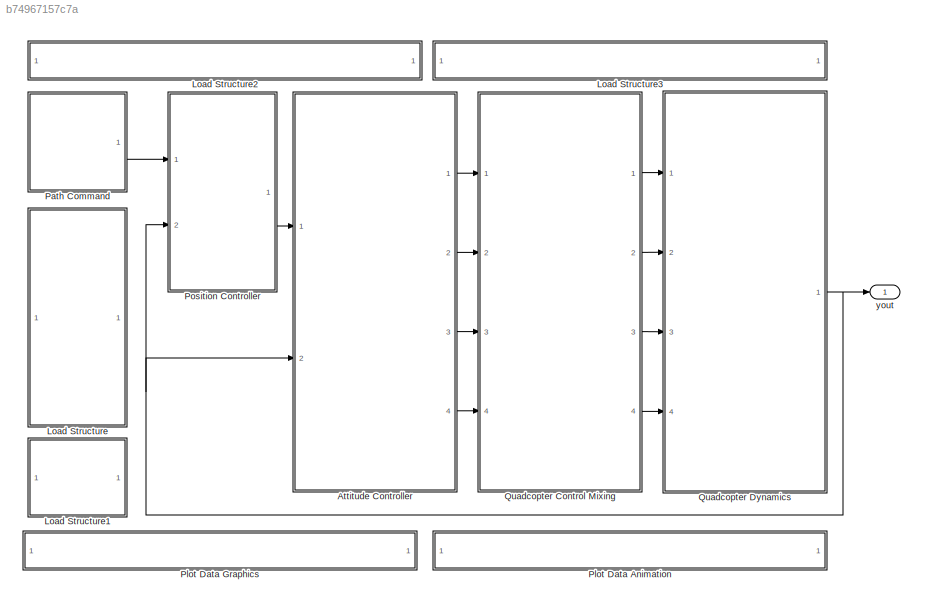
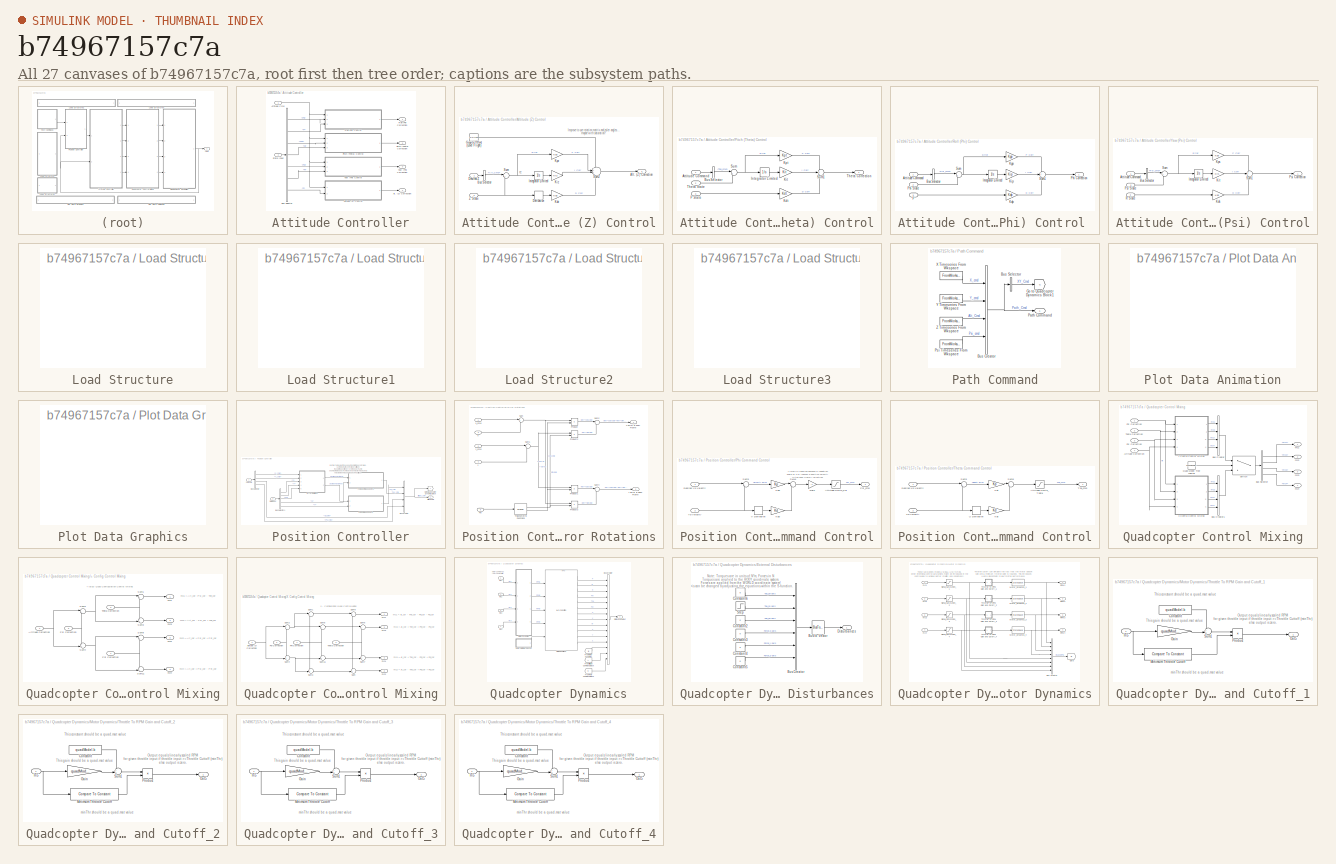
[diagram: thumbnail index - all 27 canvases of the model, root first then tree order]
MODEL slx_b74967157c7a
KIND model
WORKSPACE source: MAT-file member
WORKSPACE MCOS: class17 (value not decoded)
BLOCK [SubSystem] Attitude Controller
  FunctionWithSeparateData = off
  MaskHideContents = off
  MaskIconFrame = on
  MaskIconOpaque = off
  MaskIconRotate = none
  MaskIconUnits = autoscale
  MaskPortRotate = default
  MinAlgLoopOccurrences = off
  Opaque = off
  Ports = [2, 4]
  PropExecContextOutsideSubsystem = off
  RTWSystemCode = Auto
  RequestExecContextInheritance = off
BLOCK [Outport] Attitude Controller/Alt. (Z) Correction
  IconDisplay = Port number
  Port = 4
BLOCK [SubSystem] Attitude Controller/Altitude (Z) Control
  FunctionWithSeparateData = off
  MaskCallbackString = ||||||
  MaskDescription = Adjust PID controller gains through this mask interface, or "look under mask" for more detailed adjustments.\n\nNote: Gravity Offset will not appear on block face as a value until simulation is run if it is the result of a formula involving the quadcopter model parameters.
  MaskDisplay = fprintf(['Gravity Offset = ' num2str(GOffset) '\n' ...\n    'Kp = ' num2str(Kpz) '\n' ...\n    'Ki = ' num2str(Kiz) '\n' ...\n    'Kd = ' num2str(Kdz) '\n' ...\n    'Integral Saturation: ' LimitOutput]);   \nif strcmp(LimitOutput,'on')\n    fprintf([' \n' ' \n' ' \n' ' \n' ' \n' '\n' ...\n        'Limits: ' num2str(USat) ' to ' num2str(LSat)]);\nend
  MaskEnableString = on,on,on,on,on,on,on
  MaskHideContents = off
  MaskIconFrame = on
  MaskIconOpaque = off
  MaskIconRotate = none
  MaskIconUnits = autoscale
  MaskPortRotate = default
  MaskPromptString = Kp|Ki|Kd|Integral Saturation?|Upper saturation limit:|Lower saturation limit:|Gravity Feedforward
  MaskStyleString = promote(Kpz/Gain),promote(Kiz/Gain),promote(Kdz/Gain),promote(Integrator\nLimited/LimitOutput),promote(Integrator\nLimited/UpperSaturationLimit),promote(Integrator\nLimited/LowerSaturationLimit),promote(Gravity Offset (Level Flight)/Value)
  MaskToolTipString = on,on,on,on,on,on,on
  MaskTunableValueString = on,on,on,on,on,on,on
  MaskValueString = 2|1.1|3.3|on|1|-1|(sqrt((quadModel.mass*quadModel.g)/(4*quadModel.ct))-quadModel.b)/quadModel.cr
  MaskVariables = Kpz=@1;Kiz=@2;Kdz=@3;LimitOutput=&4;USat=@5;LSat=@6;GOffset=@7;
  MaskVisibilityString = on,on,on,on,on,on,on
  MinAlgLoopOccurrences = off
  Opaque = off
  Ports = [2, 1]
  PropExecContextOutsideSubsystem = off
  RTWSystemCode = Auto
  RequestExecContextInheritance = off
BLOCK [Outport] Attitude Controller/Altitude (Z) Control/Alt. (Z) Correction
  IconDisplay = Port number
BLOCK [BusSelector] Attitude Controller/Altitude (Z) Control/Bus Selector
  OutputSignals = Alt_Cmd
  Ports = [1, 1]
BLOCK [Derivative] Attitude Controller/Altitude (Z) Control/Derivative
BLOCK [Inport] Attitude Controller/Altitude (Z) Control/Desired Z
  IconDisplay = Port number
BLOCK [Constant] Attitude Controller/Altitude (Z) Control/Gravity Offset (Level Flight)
  Value = GOffset
BLOCK [Integrator] Attitude Controller/Altitude (Z) Control/Integrator Limited
  LimitOutput = on
  LowerSaturationLimit = LSat
  Ports = [1, 1]
  UpperSaturationLimit = USat
BLOCK [Gain] Attitude Controller/Altitude (Z) Control/Kdz
  Gain = Kdz
  OutDataTypeStr = Inherit: Inherit via internal rule
  ParamDataTypeStr = Inherit: Inherit via internal rule
  SaturateOnIntegerOverflow = off
BLOCK [Gain] Attitude Controller/Altitude (Z) Control/Kiz
  Gain = Kiz
  OutDataTypeStr = Inherit: Inherit via internal rule
  ParamDataTypeStr = Inherit: Inherit via internal rule
  SaturateOnIntegerOverflow = off
BLOCK [Gain] Attitude Controller/Altitude (Z) Control/Kpz
  Gain = Kpz
  OutDataTypeStr = Inherit: Inherit via internal rule
  ParamDataTypeStr = Inherit: Inherit via internal rule
  SaturateOnIntegerOverflow = off
BLOCK [Sum] Attitude Controller/Altitude (Z) Control/Sum
  IconShape = round
  InputSameDT = off
  Inputs = |+-
  OutDataTypeStr = Inherit: Inherit via internal rule
  Ports = [2, 1]
  SaturateOnIntegerOverflow = off
BLOCK [Sum] Attitude Controller/Altitude (Z) Control/Sum2
  IconShape = round
  InputSameDT = off
  Inputs = +++-
  OutDataTypeStr = Inherit: Inherit via internal rule
  Ports = [4, 1]
  SaturateOnIntegerOverflow = off
BLOCK [Inport] Attitude Controller/Altitude (Z) Control/Z State
  IconDisplay = Port number
  Port = 2
BLOCK [Inport] Attitude Controller/Attitude Cmd
  IconDisplay = Port number
BLOCK [BusSelector] Attitude Controller/Bus Selector
  OutputSignals = Phi,P,The,Q,Psi,R,Z
  Ports = [1, 7]
BLOCK [SubSystem] Attitude Controller/Pitch (Theta) Control
  FunctionWithSeparateData = off
  MaskCallbackString = |||||
  MaskDescription = Adjust PID controller gains through this mask interface, or "look under mask" for more detailed adjustments.
  MaskDisplay = fprintf(['Kp = ' num2str(Kpt) '\n' ...\n    'Ki = ' num2str(Kit) '\n' ...\n    'Kd = ' num2str(Kdt) '\n' ...\n    'Integral Saturation: ' LimitOutput]);   \nif strcmp(LimitOutput,'on')\n    fprintf([' \n' ' \n' ' \n' ' \n' '\n' ...\n        'Limits: ' num2str(USat) ' to ' num2str(LSat)]);\nend
  MaskEnableString = on,on,on,on,on,on
  MaskHideContents = off
  MaskIconFrame = on
  MaskIconOpaque = off
  MaskIconRotate = none
  MaskIconUnits = autoscale
  MaskPortRotate = default
  MaskPromptString = Kp|Ki|Kd|Integral Saturation?|Upper saturation limit:|Lower saturation limit:
  MaskStyleString = promote(Kpt/Gain),promote(Kit/Gain),promote(Kdt/Gain),promote(Integrator\nLimited/LimitOutput),promote(Integrator\nLimited/UpperSaturationLimit),promote(Integrator\nLimited/LowerSaturationLimit)
  MaskToolTipString = on,on,on,on,on,on
  MaskTunableValueString = on,on,on,on,on,on
  MaskValueString = 2|1.1|1.2|on|1|-1
  MaskVariables = Kpt=@1;Kit=@2;Kdt=@3;LimitOutput=&4;USat=@5;LSat=@6;
  MaskVisibilityString = on,on,on,on,on,on
  MinAlgLoopOccurrences = off
  Opaque = off
  Ports = [3, 1]
  PropExecContextOutsideSubsystem = off
  RTWSystemCode = Auto
  RequestExecContextInheritance = off
BLOCK [Inport] Attitude Controller/Pitch (Theta) Control/Attitude Command
  IconDisplay = Port number
BLOCK [BusSelector] Attitude Controller/Pitch (Theta) Control/Bus Selector
  OutputSignals = The_cmd
  Ports = [1, 1]
BLOCK [Integrator] Attitude Controller/Pitch (Theta) Control/Integrator Limited
  LimitOutput = on
  LowerSaturationLimit = LSat
  Ports = [1, 1]
  UpperSaturationLimit = USat
BLOCK [Gain] Attitude Controller/Pitch (Theta) Control/Kdt
  Gain = Kdt
  OutDataTypeStr = Inherit: Inherit via internal rule
  ParamDataTypeStr = Inherit: Inherit via internal rule
  SaturateOnIntegerOverflow = off
BLOCK [Gain] Attitude Controller/Pitch (Theta) Control/Kit
  Gain = Kit
  OutDataTypeStr = Inherit: Inherit via internal rule
  ParamDataTypeStr = Inherit: Inherit via internal rule
  SaturateOnIntegerOverflow = off
BLOCK [Gain] Attitude Controller/Pitch (Theta) Control/Kpt
  Gain = Kpt
  OutDataTypeStr = Inherit: Inherit via internal rule
  ParamDataTypeStr = Inherit: Inherit via internal rule
  SaturateOnIntegerOverflow = off
BLOCK [Inport] Attitude Controller/Pitch (Theta) Control/P State
  IconDisplay = Port number
  Port = 3
BLOCK [Sum] Attitude Controller/Pitch (Theta) Control/Sum
  IconShape = round
  InputSameDT = off
  Inputs = |+-
  OutDataTypeStr = Inherit: Inherit via internal rule
  Ports = [2, 1]
  SaturateOnIntegerOverflow = off
BLOCK [Sum] Attitude Controller/Pitch (Theta) Control/Sum1
  IconShape = round
  InputSameDT = off
  Inputs = ++-
  OutDataTypeStr = Inherit: Inherit via internal rule
  Ports = [3, 1]
  SaturateOnIntegerOverflow = off
BLOCK [Outport] Attitude Controller/Pitch (Theta) Control/Theta Correction
  IconDisplay = Port number
BLOCK [Inport] Attitude Controller/Pitch (Theta) Control/Theta State
  IconDisplay = Port number
  Port = 2
BLOCK [Outport] Attitude Controller/Pitch (Theta) Correction
  IconDisplay = Port number
  Port = 2
BLOCK [SubSystem] Attitude Controller/Roll (Phi) Control 
  FunctionWithSeparateData = off
  MaskCallbackString = |||||
  MaskDescription = Adjust PID controller gains through this mask interface, or "look under mask"\nfor more detailed adjustments.
  MaskDisplay = fprintf(['Kp = ' num2str(Kpp) '\n' ...\n    'Ki = ' num2str(Kip) '\n' ...\n    'Kd = ' num2str(Kdp) '\n'...\n    'Integral Saturation: ' LimitOutput]);   \nif strcmp(LimitOutput,'on')\n    fprintf([' \n' ' \n' ' \n' ' \n' '\n' ...\n        'Limits: ' num2str(USat) ' to ' num2str(LSat)]);\nend
  MaskEnableString = on,on,on,on,on,on
  MaskHideContents = off
  MaskIconFrame = on
  MaskIconOpaque = off
  MaskIconRotate = none
  MaskIconUnits = autoscale
  MaskPortRotate = default
  MaskPromptString = Kp|Ki|Kd|Integral Saturation:|Upper saturation limit:|Lower saturation limit:
  MaskStyleString = promote(Kpp/Gain),promote(Kip/Gain),promote(Kdp/Gain),promote(Integrator\nLimited/LimitOutput),promote(Integrator\nLimited/UpperSaturationLimit),promote(Integrator\nLimited/LowerSaturationLimit)
  MaskToolTipString = on,on,on,on,on,on
  MaskTunableValueString = on,on,on,on,on,on
  MaskValueString = 2.0|1.1|1.2|on|1|-1
  MaskVariables = Kpp=@1;Kip=@2;Kdp=@3;LimitOutput=&4;USat=@5;LSat=@6;
  MaskVisibilityString = on,on,on,on,on,on
  MinAlgLoopOccurrences = off
  Opaque = off
  Ports = [3, 1]
  PropExecContextOutsideSubsystem = off
  RTWSystemCode = Auto
  RequestExecContextInheritance = off
BLOCK [Inport] Attitude Controller/Roll (Phi) Control /Attitude Command 
  IconDisplay = Port number
BLOCK [BusSelector] Attitude Controller/Roll (Phi) Control /Bus Selector
  OutputSignals = Phi_cmd
  Ports = [1, 1]
BLOCK [Integrator] Attitude Controller/Roll (Phi) Control /Integrator Limited
  LimitOutput = on
  LowerSaturationLimit = LSat
  Ports = [1, 1]
  UpperSaturationLimit = USat
BLOCK [Gain] Attitude Controller/Roll (Phi) Control /Kdp
  Gain = Kdp
  OutDataTypeStr = Inherit: Inherit via internal rule
  ParamDataTypeStr = Inherit: Inherit via internal rule
  SaturateOnIntegerOverflow = off
BLOCK [Gain] Attitude Controller/Roll (Phi) Control /Kip
  Gain = Kip
  OutDataTypeStr = Inherit: Inherit via internal rule
  ParamDataTypeStr = Inherit: Inherit via internal rule
  SaturateOnIntegerOverflow = off
BLOCK [Gain] Attitude Controller/Roll (Phi) Control /Kpp
  Gain = Kpp
  OutDataTypeStr = Inherit: Inherit via internal rule
  ParamDataTypeStr = Inherit: Inherit via internal rule
  SaturateOnIntegerOverflow = off
BLOCK [Inport] Attitude Controller/Roll (Phi) Control /P
  IconDisplay = Port number
  Port = 3
BLOCK [Outport] Attitude Controller/Roll (Phi) Control /Phi Correction
  IconDisplay = Port number
BLOCK [Inport] Attitude Controller/Roll (Phi) Control /Phi State
  IconDisplay = Port number
  Port = 2
BLOCK [Sum] Attitude Controller/Roll (Phi) Control /Sum
  IconShape = round
  InputSameDT = off
  Inputs = |+-
  OutDataTypeStr = Inherit: Inherit via internal rule
  Ports = [2, 1]
  SaturateOnIntegerOverflow = off
BLOCK [Sum] Attitude Controller/Roll (Phi) Control /Sum1
  IconShape = round
  InputSameDT = off
  Inputs = ++-
  OutDataTypeStr = Inherit: Inherit via internal rule
  Ports = [3, 1]
  SaturateOnIntegerOverflow = off
BLOCK [Outport] Attitude Controller/Roll (Phi) Correction
  IconDisplay = Port number
BLOCK [Inport] Attitude Controller/State Input
  IconDisplay = Port number
  Port = 2
BLOCK [SubSystem] Attitude Controller/Yaw (Psi) Control
  FunctionWithSeparateData = off
  MaskCallbackString = |||||
  MaskDescription = Adjust PID controller gains through this mask interface, or "look under mask" for more detailed adjustments.
  MaskDisplay = fprintf(['Kp = ' num2str(Kps) '\n' ...\n    'Ki = ' num2str(Kis) '\n' ...\n    'Kd = ' num2str(Kds) '\n' ...\n    'Integral Saturation: ' LimitOutput]);   \nif strcmp(LimitOutput,'on')\n    fprintf([' \n' ' \n' ' \n' ' \n' '\n' ...\n        'Limits: ' num2str(USat) ' to ' num2str(LSat)]);\nend
  MaskEnableString = on,on,on,on,on,on
  MaskHideContents = off
  MaskIconFrame = on
  MaskIconOpaque = off
  MaskIconRotate = none
  MaskIconUnits = autoscale
  MaskPortRotate = default
  MaskPromptString = Kp|Ki|Kd|Integral Saturation?|Upper saturation limit:|Lower saturation limit:
  MaskStyleString = promote(Kps/Gain),promote(Kit/Gain),promote(Kds/Gain),promote(Integrator\nLimited/LimitOutput),promote(Integrator\nLimited/UpperSaturationLimit),promote(Integrator\nLimited/LowerSaturationLimit)
  MaskToolTipString = on,on,on,on,on,on
  MaskTunableValueString = on,on,on,on,on,on
  MaskValueString = 4|0.5|3.5|on|1|-1
  MaskVariables = Kps=@1;Kis=@2;Kds=@3;LimitOutput=&4;USat=@5;LSat=@6;
  MaskVisibilityString = on,on,on,on,on,on
  MinAlgLoopOccurrences = off
  Opaque = off
  Ports = [3, 1]
  PropExecContextOutsideSubsystem = off
  RTWSystemCode = Auto
  RequestExecContextInheritance = off
BLOCK [Inport] Attitude Controller/Yaw (Psi) Control/Attitude Command
  IconDisplay = Port number
BLOCK [BusSelector] Attitude Controller/Yaw (Psi) Control/Bus Selector
  OutputSignals = Psi_cmd
  Ports = [1, 1]
BLOCK [Integrator] Attitude Controller/Yaw (Psi) Control/Integrator Limited
  LimitOutput = on
  LowerSaturationLimit = LSat
  Ports = [1, 1]
  UpperSaturationLimit = USat
BLOCK [Gain] Attitude Controller/Yaw (Psi) Control/Kds
  Gain = Kds
  OutDataTypeStr = Inherit: Inherit via internal rule
  ParamDataTypeStr = Inherit: Inherit via internal rule
  SaturateOnIntegerOverflow = off
BLOCK [Gain] Attitude Controller/Yaw (Psi) Control/Kit
  Gain = Kis
  OutDataTypeStr = Inherit: Inherit via internal rule
  ParamDataTypeStr = Inherit: Inherit via internal rule
  SaturateOnIntegerOverflow = off
BLOCK [Gain] Attitude Controller/Yaw (Psi) Control/Kps
  Gain = Kps
  OutDataTypeStr = Inherit: Inherit via internal rule
  ParamDataTypeStr = Inherit: Inherit via internal rule
  SaturateOnIntegerOverflow = off
BLOCK [Outport] Attitude Controller/Yaw (Psi) Control/Psi Correction
  IconDisplay = Port number
BLOCK [Inport] Attitude Controller/Yaw (Psi) Control/Psi State
  IconDisplay = Port number
  Port = 2
BLOCK [Inport] Attitude Controller/Yaw (Psi) Control/R State
  IconDisplay = Port number
  Port = 3
BLOCK [Sum] Attitude Controller/Yaw (Psi) Control/Sum
  IconShape = round
  InputSameDT = off
  Inputs = |+-
  OutDataTypeStr = Inherit: Inherit via internal rule
  Ports = [2, 1]
  SaturateOnIntegerOverflow = off
BLOCK [Sum] Attitude Controller/Yaw (Psi) Control/Sum1
  IconShape = round
  InputSameDT = off
  Inputs = ++-
  OutDataTypeStr = Inherit: Inherit via internal rule
  Ports = [3, 1]
  SaturateOnIntegerOverflow = off
BLOCK [Outport] Attitude Controller/Yaw (Psi) Correction
  IconDisplay = Port number
  Port = 3
BLOCK [SubSystem] Load Structure
  FunctionWithSeparateData = off
  MaskDisplay = fprintf('LOAD:\nTimeseries\nPath\nCommands,\nQuadcopter\nModel, Or\nInitial\nConditions');
  MaskHideContents = off
  MaskIconFrame = on
  MaskIconOpaque = on
  MaskIconRotate = none
  MaskIconUnits = autoscale
  MaskPortRotate = default
  MinAlgLoopOccurrences = off
  Opaque = off
  OpenFcn = uiopen('load')                                                        \nif ((exist('IC')==1) && (exist('quadModel')==1) && (exist('path')==1))\nset_param(bdroot, 'SimulationCommand', 'update')                      \nend
  Ports = []
  PropExecContextOutsideSubsystem = off
  RTWSystemCode = Auto
  RequestExecContextInheritance = off
  ShowPortLabels = FromPortBlockName
BLOCK [SubSystem] Load Structure1
  FunctionWithSeparateData = off
  MaskDisplay = fprintf('SAVE:\nSimulation\nResults');
  MaskHideContents = off
  MaskIconFrame = on
  MaskIconOpaque = on
  MaskIconRotate = none
  MaskIconUnits = autoscale
  MaskPortRotate = default
  MinAlgLoopOccurrences = off
  Opaque = off
  OpenFcn = if (exist('IC')==1 && exist('quadModel')==1 && exist('yout') && exist('tout'))\nsaveSimResults()                                                              \nelse                                                                          \nmsgbox('No Data To Save!')                                                    \nend
  Ports = []
  PropExecContextOutsideSubsystem = off
  RTWSystemCode = Auto
  RequestExecContextInheritance = off
  ShowPortLabels = FromPortBlockName
BLOCK [SubSystem] Load Structure2
  FunctionWithSeparateData = off
  MaskDisplay = fprintf('OPEN GUI: Build New \n Model');
  MaskHideContents = off
  MaskIconFrame = on
  MaskIconOpaque = on
  MaskIconRotate = none
  MaskIconUnits = autoscale
  MaskPortRotate = default
  MinAlgLoopOccurrences = off
  Opaque = off
  OpenFcn = if exist('GUI_Modeling') == 2,                                \nrun('GUI_Modeling')                                           \n                                                              \nelse                                                          \n                                                              \nmsgbox('The desired GUI must be first added to MATLABs path.')\n                      ...<+44ch>
  Ports = []
  PropExecContextOutsideSubsystem = off
  RTWSystemCode = Auto
  RequestExecContextInheritance = off
  ShowPortLabels = none
BLOCK [SubSystem] Load Structure3
  FunctionWithSeparateData = off
  MaskDisplay = fprintf('OPEN GUI: Create Initial \n Conditions');
  MaskHideContents = off
  MaskIconFrame = on
  MaskIconOpaque = on
  MaskIconRotate = none
  MaskIconUnits = autoscale
  MaskPortRotate = default
  MinAlgLoopOccurrences = off
  Opaque = off
  OpenFcn = if exist('GUI_IC') == 2,                                      \nrun('GUI_IC')                                                 \n                                                              \nelse                                                          \n                                                              \nmsgbox('The desired GUI must be first added to MATLABs path.')\n                      ...<+44ch>
  Ports = []
  PropExecContextOutsideSubsystem = off
  RTWSystemCode = Auto
  RequestExecContextInheritance = off
  ShowPortLabels = none
BLOCK [SubSystem] Path Command
  FunctionWithSeparateData = off
  MaskCallbackString = |
  MaskDescription = Selecting the Interpolate data checkbox causes position commands to be \nlinearly interpolated. For additional options related to the Timeseries \n"path" commands, look under the block and click on the Timeseries From \nWorkspace blocks.
  MaskEnableString = on,on
  MaskHideContents = off
  MaskIconFrame = on
  MaskIconOpaque = on
  MaskIconRotate = none
  MaskIconUnits = autoscale
  MaskPortRotate = default
  MaskPromptString = Interpolate X, Y, Z, and Psi command data?|Form output after final data value by:
  MaskStyleString = promote(X Timeseries From Wkspace/Interpolate|Y Timeseries From Wkspace/Interpolate|Z Timeseries From Wkspace/Interpolate|Psi Timeseries From Wkspace/Interpolate),promote(X Timeseries From Wkspace/OutputAfterFinalValue|Y Timeseries From Wkspace/OutputAfterFinalValue|Z Timeseries From Wkspace/OutputAfterFinalValue|Psi Timeseries From Wkspace/OutputAfterFinalValue)
  MaskToolTipString = on,on
  MaskTunableValueString = on,on
  MaskValueString = on|Holding final value
  MaskVariables = Interpolate=&1;OutputAfterFinalValue=&2;
  MaskVisibilityString = on,on
  MinAlgLoopOccurrences = off
  Opaque = off
  Ports = [0, 1]
  PropExecContextOutsideSubsystem = off
  RTWSystemCode = Auto
  RequestExecContextInheritance = off
BLOCK [BusCreator] Path Command/Bus Creator
  DisplayOption = bar
  Ports = [4, 1]
BLOCK [BusSelector] Path Command/Bus Selector
  OutputAsBus = on
  OutputSignals = X_cmd,Y_cmd
  Ports = [1, 1]
BLOCK [Goto] Path Command/Go to Quadcopter Dynamics Block1
  GotoTag = C
  TagVisibility = global
BLOCK [Outport] Path Command/Path Command 
  IconDisplay = Port number
BLOCK [FromWorkspace] Path Command/Psi Timeseries From Wkspace
  OutputAfterFinalValue = Holding final value
  SampleTime = 0
  VariableName = path.psi
  ZeroCross = on
BLOCK [FromWorkspace] Path Command/X Timeseries From Wkspace
  OutputAfterFinalValue = Holding final value
  SampleTime = 0
  VariableName = path.x
  ZeroCross = on
BLOCK [FromWorkspace] Path Command/Y Timeseries From Wkspace
  OutputAfterFinalValue = Holding final value
  SampleTime = 0
  VariableName = path.y
  ZeroCross = on
BLOCK [FromWorkspace] Path Command/Z Timeseries From Wkspace
  OutputAfterFinalValue = Holding final value
  SampleTime = 0
  VariableName = path.z
  ZeroCross = on
BLOCK [SubSystem] Plot Data Animation
  FunctionWithSeparateData = off
  MaskDisplay = fprintf('OPEN GUI: Flight Animation')
  MaskHideContents = off
  MaskIconFrame = on
  MaskIconOpaque = on
  MaskIconRotate = none
  MaskIconUnits = autoscale
  MaskPortRotate = default
  MinAlgLoopOccurrences = off
  Opaque = off
  OpenFcn = if exist('QuadAnim4') == 2,                                                                                                                 \n    if exist('yout')                                                                                                                        \n	run('QuadAnim4');                                                                                                    ...<+590ch>
  Ports = []
  PropExecContextOutsideSubsystem = off
  RTWSystemCode = Auto
  RequestExecContextInheritance = off
  ShowPortLabels = FromPortBlockName
BLOCK [SubSystem] Plot Data Graphics
  FunctionWithSeparateData = off
  MaskDisplay = fprintf('OPEN PLOT: State Data')
  MaskHideContents = off
  MaskIconFrame = on
  MaskIconOpaque = on
  MaskIconRotate = none
  MaskIconUnits = autoscale
  MaskPortRotate = default
  MinAlgLoopOccurrences = off
  Opaque = off
  OpenFcn = if exist('yout')                                            \nyout = evalin('base', 'yout');                              \ntout = evalin('base', 'tout');                              \nquadPlots(yout, tout)                                       \nelse                                                        \nmsgbox('Simulation must be run before data can be plotted.')\nend
  Ports = []
  PropExecContextOutsideSubsystem = off
  RTWSystemCode = Auto
  RequestExecContextInheritance = off
  ShowPortLabels = FromPortBlockName
BLOCK [SubSystem] Position Controller
  FunctionWithSeparateData = off
  MaskHideContents = off
  MaskIconFrame = on
  MaskIconOpaque = on
  MaskIconRotate = none
  MaskIconUnits = autoscale
  MaskPortRotate = default
  MinAlgLoopOccurrences = off
  Opaque = off
  Ports = [2, 1]
  PropExecContextOutsideSubsystem = off
  RTWSystemCode = Auto
  RequestExecContextInheritance = off
BLOCK [Outport] Position Controller/Attitude Cmd
  IconDisplay = Port number
BLOCK [BusCreator] Position Controller/Bus Creator
  DisplayOption = bar
  Ports = [4, 1]
BLOCK [BusSelector] Position Controller/Bus Selector
  OutputSignals = X_cmd,Y_cmd,Alt_Cmd,Psi_cmd
  Ports = [1, 4]
BLOCK [BusSelector] Position Controller/Bus Selector1
  OutputSignals = X,Y,Psi,U,V
  Ports = [1, 5]
BLOCK [SubSystem] Position Controller/Error Rotations
  FunctionWithSeparateData = off
  MaskHideContents = off
  MaskIconFrame = on
  MaskIconOpaque = off
  MaskIconRotate = none
  MaskIconUnits = autoscale
  MaskPortRotate = default
  MinAlgLoopOccurrences = off
  Opaque = off
  Ports = [5, 2]
  PropExecContextOutsideSubsystem = off
  RTWSystemCode = Auto
  RequestExecContextInheritance = off
BLOCK [Product] Position Controller/Error Rotations/Product
  InputSameDT = off
  OutDataTypeStr = Inherit: Inherit via internal rule
  Ports = [2, 1]
  RndMeth = Floor
  SaturateOnIntegerOverflow = off
BLOCK [Product] Position Controller/Error Rotations/Product1
  InputSameDT = off
  OutDataTypeStr = Inherit: Inherit via internal rule
  Ports = [2, 1]
  RndMeth = Floor
  SaturateOnIntegerOverflow = off
BLOCK [Product] Position Controller/Error Rotations/Product2
  InputSameDT = off
  OutDataTypeStr = Inherit: Inherit via internal rule
  Ports = [2, 1]
  RndMeth = Floor
  SaturateOnIntegerOverflow = off
BLOCK [Product] Position Controller/Error Rotations/Product3
  InputSameDT = off
  OutDataTypeStr = Inherit: Inherit via internal rule
  Ports = [2, 1]
  RndMeth = Floor
  SaturateOnIntegerOverflow = off
BLOCK [Inport] Position Controller/Error Rotations/Psi
  IconDisplay = Port number
  Port = 5
BLOCK [Sum] Position Controller/Error Rotations/Sum
  IconShape = round
  InputSameDT = off
  Inputs = |+-
  OutDataTypeStr = Inherit: Inherit via internal rule
  Ports = [2, 1]
  SaturateOnIntegerOverflow = off
BLOCK [Sum] Position Controller/Error Rotations/Sum1
  IconShape = round
  InputSameDT = off
  Inputs = |+-
  OutDataTypeStr = Inherit: Inherit via internal rule
  Ports = [2, 1]
  SaturateOnIntegerOverflow = off
BLOCK [Sum] Position Controller/Error Rotations/Sum2
  IconShape = round
  InputSameDT = off
  Inputs = |++
  OutDataTypeStr = Inherit: Inherit via internal rule
  Ports = [2, 1]
  SaturateOnIntegerOverflow = off
BLOCK [Sum] Position Controller/Error Rotations/Sum4
  IconShape = round
  InputSameDT = off
  Inputs = |+-
  OutDataTypeStr = Inherit: Inherit via internal rule
  Ports = [2, 1]
  SaturateOnIntegerOverflow = off
BLOCK [Trigonometry] Position Controller/Error Rotations/Trigonometric Functions
  Operator = sincos
  Ports = [1, 2]
BLOCK [Inport] Position Controller/Error Rotations/X
  IconDisplay = Port number
  Port = 3
BLOCK [Outport] Position Controller/Error Rotations/X Error in body Frame
  IconDisplay = Port number
BLOCK [Inport] Position Controller/Error Rotations/X_cmd
  IconDisplay = Port number
BLOCK [Inport] Position Controller/Error Rotations/Y
  IconDisplay = Port number
  Port = 4
BLOCK [Outport] Position Controller/Error Rotations/Y Error in Body Frame
  IconDisplay = Port number
  Port = 2
BLOCK [Inport] Position Controller/Error Rotations/Y_cmd
  IconDisplay = Port number
  Port = 2
BLOCK [Goto] Position Controller/Goto Quadcopter Dynamics Block
  GotoTag = A
  TagVisibility = global
BLOCK [Inport] Position Controller/Path Cmd
  IconDisplay = Port number
BLOCK [SubSystem] Position Controller/Phi Command Control
  FunctionWithSeparateData = off
  MaskCallbackString = ||
  MaskDisplay = fprintf(['Kp = ' num2str(Kp) '\n' ...\n    'Kd = ' num2str(Kd) '\n' ...\n    'Attitude Limit (+/-): ' num2str(ASat*180/pi) '°']);
  MaskEnableString = on,on,on
  MaskHideContents = off
  MaskIconFrame = on
  MaskIconOpaque = off
  MaskIconRotate = none
  MaskIconUnits = autoscale
  MaskPortRotate = default
  MaskPromptString = Proportional Gain|Derivative Gain|Attitude Limit (+/- radians):
  MaskStyleString = promote(Kpp/Gain),promote(Kdp/Gain),promote(Attitude Limits_Phi/UpperLimit)
  MaskToolTipString = on,on,on
  MaskTunableValueString = on,on,on
  MaskValueString = 0.32|0.1|12*pi/180
  MaskVariables = Kp=@1;Kd=@2;ASat=@3;
  MaskVisibilityString = on,on,on
  MinAlgLoopOccurrences = off
  Opaque = off
  Ports = [2, 1]
  PropExecContextOutsideSubsystem = off
  RTWSystemCode = Auto
  RequestExecContextInheritance = off
BLOCK [Saturate] Position Controller/Phi Command Control/Attitude Limits_Phi
  InputPortMap = u0
  LowerLimit = -ASat
  Ports = [1, 1]
  UpperLimit = ASat
BLOCK [Inport] Position Controller/Phi Command Control/Desired Yb Velocity
  IconDisplay = Port number
BLOCK [Gain] Position Controller/Phi Command Control/Gain
  Gain = -1
  OutDataTypeStr = Inherit: Inherit via internal rule
  ParamDataTypeStr = Inherit: Inherit via internal rule
  SaturateOnIntegerOverflow = off
BLOCK [Gain] Position Controller/Phi Command Control/Kdp
  Gain = Kd
  OutDataTypeStr = Inherit: Inherit via internal rule
  ParamDataTypeStr = Inherit: Inherit via internal rule
  SaturateOnIntegerOverflow = off
BLOCK [Gain] Position Controller/Phi Command Control/Kpp
  Gain = Kp
  OutDataTypeStr = Inherit: Inherit via internal rule
  ParamDataTypeStr = Inherit: Inherit via internal rule
  SaturateOnIntegerOverflow = off
BLOCK [Outport] Position Controller/Phi Command Control/Phi_cmd
  IconDisplay = Port number
BLOCK [Sum] Position Controller/Phi Command Control/Sum3
  IconShape = round
  InputSameDT = off
  Inputs = |+-
  OutDataTypeStr = Inherit: Inherit via internal rule
  Ports = [2, 1]
  SaturateOnIntegerOverflow = off
BLOCK [Sum] Position Controller/Phi Command Control/Sum6
  IconShape = round
  InputSameDT = off
  Inputs = |+-
  OutDataTypeStr = Inherit: Inherit via internal rule
  Ports = [2, 1]
  SaturateOnIntegerOverflow = off
BLOCK [Derivative] Position Controller/Phi Command Control/V Derivative
BLOCK [Inport] Position Controller/Phi Command Control/Yb Velocity
  IconDisplay = Port number
  Port = 2
BLOCK [Inport] Position Controller/State Input
  IconDisplay = Port number
  Port = 2
BLOCK [SubSystem] Position Controller/Theta Command Control
  FunctionWithSeparateData = off
  MaskCallbackString = ||
  MaskDisplay = fprintf(['Kp = ' num2str(Kp) '\n' ...\n    'Kd = ' num2str(Kd) '\n' ...\n    'Attitude Limit (+/-): ' num2str(ASat*180/pi) '°']);
  MaskEnableString = on,on,on
  MaskHideContents = off
  MaskIconFrame = on
  MaskIconOpaque = off
  MaskIconRotate = none
  MaskIconUnits = autoscale
  MaskPortRotate = default
  MaskPromptString = Proportional Gain:|Derivative Gain|Attitude Limit (+/- radians):
  MaskStyleString = promote(Kpt/Gain),promote(Kdt/Gain),promote(Attitude Limits_Theta/UpperLimit)
  MaskToolTipString = on,on,on
  MaskTunableValueString = on,on,on
  MaskValueString = 0.32|0.10|12*pi/180
  MaskVariables = Kp=@1;Kd=@2;ASat=@3;
  MaskVisibilityString = on,on,on
  MinAlgLoopOccurrences = off
  Opaque = off
  Ports = [2, 1]
  PropExecContextOutsideSubsystem = off
  RTWSystemCode = Auto
  RequestExecContextInheritance = off
BLOCK [Saturate] Position Controller/Theta Command Control/Attitude Limits_Theta
  InputPortMap = u0
  LowerLimit = -ASat
  Ports = [1, 1]
  UpperLimit = ASat
BLOCK [Inport] Position Controller/Theta Command Control/Desired Xb Velocity
  IconDisplay = Port number
BLOCK [Gain] Position Controller/Theta Command Control/Kdt
  Gain = Kd
  OutDataTypeStr = Inherit: Inherit via internal rule
  ParamDataTypeStr = Inherit: Inherit via internal rule
  SaturateOnIntegerOverflow = off
BLOCK [Gain] Position Controller/Theta Command Control/Kpt
  Gain = Kp
  OutDataTypeStr = Inherit: Inherit via internal rule
  ParamDataTypeStr = Inherit: Inherit via internal rule
  SaturateOnIntegerOverflow = off
BLOCK [Sum] Position Controller/Theta Command Control/Sum3
  IconShape = round
  InputSameDT = off
  Inputs = |+-
  OutDataTypeStr = Inherit: Inherit via internal rule
  Ports = [2, 1]
  SaturateOnIntegerOverflow = off
BLOCK [Sum] Position Controller/Theta Command Control/Sum6
  IconShape = round
  InputSameDT = off
  Inputs = |+-
  OutDataTypeStr = Inherit: Inherit via internal rule
  Ports = [2, 1]
  SaturateOnIntegerOverflow = off
BLOCK [Outport] Position Controller/Theta Command Control/The_cmd
  IconDisplay = Port number
BLOCK [Derivative] Position Controller/Theta Command Control/U Derivative
BLOCK [Inport] Position Controller/Theta Command Control/Xb Velocity
  IconDisplay = Port number
  Port = 2
BLOCK [SubSystem] Quadcopter Control Mixing
  FunctionWithSeparateData = off
  MaskDisplay = modelLoaded = evalin('base','exist(''quadModel'',''var'')');\nif (modelLoaded==1)\n    if (evalin('base','quadModel.plusConfig'))\n    fprintf([' \n' ' \n'  'Configuration "+"']);\n    else if (~evalin('base','quadModel.plusConfig'))\n        fprintf([' \n' ' \n' 'Configuration "X"']);\n        end\n    end\nelse\n    fprintf([' \n' ' \n'  'Model Not Loaded']);\nend
  MaskHideContents = off
  MaskIconFrame = on
  MaskIconOpaque = off
  MaskIconRotate = none
  MaskIconUnits = autoscale
  MaskPortRotate = default
  MinAlgLoopOccurrences = off
  Opaque = off
  Ports = [4, 4]
  PropExecContextOutsideSubsystem = off
  RTWSystemCode = Auto
  RequestExecContextInheritance = off
BLOCK [SubSystem] Quadcopter Control Mixing/+ Config Control Mixing
  FunctionWithSeparateData = off
  MaskHideContents = off
  MaskIconFrame = on
  MaskIconOpaque = on
  MaskIconRotate = none
  MaskIconUnits = autoscale
  MaskPortRotate = default
  MinAlgLoopOccurrences = off
  Opaque = off
  Ports = [4, 4]
  PropExecContextOutsideSubsystem = off
  RTWSystemCode = Auto
  RequestExecContextInheritance = off
BLOCK [Inport] Quadcopter Control Mixing/+ Config Control Mixing/Altitude Correction
  IconDisplay = Port number
  Port = 4
BLOCK [Inport] Quadcopter Control Mixing/+ Config Control Mixing/Phi Correction
  IconDisplay = Port number
BLOCK [Inport] Quadcopter Control Mixing/+ Config Control Mixing/Psi Correction
  IconDisplay = Port number
  Port = 3
BLOCK [Sum] Quadcopter Control Mixing/+ Config Control Mixing/Sum1
  IconShape = round
  InputSameDT = off
  Inputs = |+-
  OutDataTypeStr = Inherit: Inherit via internal rule
  Ports = [2, 1]
  SaturateOnIntegerOverflow = off
BLOCK [Sum] Quadcopter Control Mixing/+ Config Control Mixing/Sum11
  IconShape = round
  InputSameDT = off
  Inputs = -+|
  OutDataTypeStr = Inherit: Inherit via internal rule
  Ports = [2, 1]
  SaturateOnIntegerOverflow = off
BLOCK [Sum] Quadcopter Control Mixing/+ Config Control Mixing/Sum2
  IconShape = round
  InputSameDT = off
  Inputs = |+-
  OutDataTypeStr = Inherit: Inherit via internal rule
  Ports = [2, 1]
  SaturateOnIntegerOverflow = off
BLOCK [Sum] Quadcopter Control Mixing/+ Config Control Mixing/Sum3
  IconShape = round
  InputSameDT = off
  Inputs = ++|
  OutDataTypeStr = Inherit: Inherit via internal rule
  Ports = [2, 1]
  SaturateOnIntegerOverflow = off
BLOCK [Sum] Quadcopter Control Mixing/+ Config Control Mixing/Sum4
  IconShape = round
  InputSameDT = off
  Inputs = ++|
  OutDataTypeStr = Inherit: Inherit via internal rule
  Ports = [2, 1]
  SaturateOnIntegerOverflow = off
BLOCK [Sum] Quadcopter Control Mixing/+ Config Control Mixing/Sum8
  IconShape = round
  InputSameDT = off
  Inputs = |++
  OutDataTypeStr = Inherit: Inherit via internal rule
  Ports = [2, 1]
  SaturateOnIntegerOverflow = off
BLOCK [Inport] Quadcopter Control Mixing/+ Config Control Mixing/Theta Correction
  IconDisplay = Port number
  Port = 2
BLOCK [Outport] Quadcopter Control Mixing/+ Config Control Mixing/mc1
  IconDisplay = Port number
BLOCK [Outport] Quadcopter Control Mixing/+ Config Control Mixing/mc2
  IconDisplay = Port number
  Port = 2
BLOCK [Outport] Quadcopter Control Mixing/+ Config Control Mixing/mc3
  IconDisplay = Port number
  Port = 3
BLOCK [Outport] Quadcopter Control Mixing/+ Config Control Mixing/mc4
  IconDisplay = Port number
  Port = 4
BLOCK [Inport] Quadcopter Control Mixing/Altitude Correction
  IconDisplay = Port number
  Port = 4
BLOCK [BusCreator] Quadcopter Control Mixing/Bus Creator
  DisplayOption = bar
  Ports = [4, 1]
BLOCK [BusCreator] Quadcopter Control Mixing/Bus Creator1
  DisplayOption = bar
  Ports = [4, 1]
BLOCK [BusSelector] Quadcopter Control Mixing/Bus Selector
  OutputSignals = mc1,mc2,mc3,mc4
  Ports = [1, 4]
BLOCK [Inport] Quadcopter Control Mixing/Phi Correction
  IconDisplay = Port number
BLOCK [Inport] Quadcopter Control Mixing/Psi Correction
  IconDisplay = Port number
  Port = 3
BLOCK [Constant] Quadcopter Control Mixing/Quad Model Type Logical
  Value = quadModel.plusConfig
BLOCK [Switch] Quadcopter Control Mixing/Switch
  Criteria = u2 ~= 0
  InputSameDT = off
  SaturateOnIntegerOverflow = off
BLOCK [Inport] Quadcopter Control Mixing/Theta Correction
  IconDisplay = Port number
  Port = 2
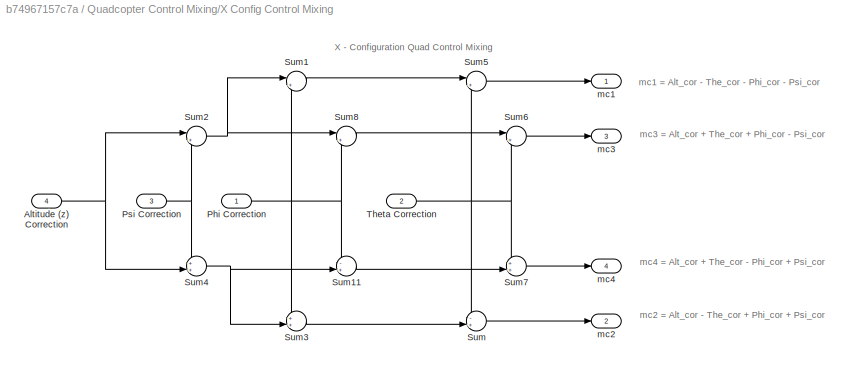
BLOCK [SubSystem] Quadcopter Control Mixing/X Config Control Mixing
  FunctionWithSeparateData = off
  MaskHideContents = off
  MaskIconFrame = on
  MaskIconOpaque = on
  MaskIconRotate = none
  MaskIconUnits = autoscale
  MaskPortRotate = default
  MinAlgLoopOccurrences = off
  Opaque = off
  Ports = [4, 4]
  PropExecContextOutsideSubsystem = off
  RTWSystemCode = Auto
  RequestExecContextInheritance = off
BLOCK [Inport] Quadcopter Control Mixing/X Config Control Mixing/Altitude (z) Correction
  IconDisplay = Port number
  Port = 4
BLOCK [Inport] Quadcopter Control Mixing/X Config Control Mixing/Phi Correction
  IconDisplay = Port number
BLOCK [Inport] Quadcopter Control Mixing/X Config Control Mixing/Psi Correction
  IconDisplay = Port number
  Port = 3
BLOCK [Sum] Quadcopter Control Mixing/X Config Control Mixing/Sum
  IconShape = round
  InputSameDT = off
  Inputs = -+|
  OutDataTypeStr = Inherit: Inherit via internal rule
  Ports = [2, 1]
  SaturateOnIntegerOverflow = off
BLOCK [Sum] Quadcopter Control Mixing/X Config Control Mixing/Sum1
  IconShape = round
  InputSameDT = off
  Inputs = |+-
  OutDataTypeStr = Inherit: Inherit via internal rule
  Ports = [2, 1]
  SaturateOnIntegerOverflow = off
BLOCK [Sum] Quadcopter Control Mixing/X Config Control Mixing/Sum11
  IconShape = round
  InputSameDT = off
  Inputs = -+|
  OutDataTypeStr = Inherit: Inherit via internal rule
  Ports = [2, 1]
  SaturateOnIntegerOverflow = off
BLOCK [Sum] Quadcopter Control Mixing/X Config Control Mixing/Sum2
  IconShape = round
  InputSameDT = off
  Inputs = |+-
  OutDataTypeStr = Inherit: Inherit via internal rule
  Ports = [2, 1]
  SaturateOnIntegerOverflow = off
BLOCK [Sum] Quadcopter Control Mixing/X Config Control Mixing/Sum3
  IconShape = round
  InputSameDT = off
  Inputs = ++|
  OutDataTypeStr = Inherit: Inherit via internal rule
  Ports = [2, 1]
  SaturateOnIntegerOverflow = off
BLOCK [Sum] Quadcopter Control Mixing/X Config Control Mixing/Sum4
  IconShape = round
  InputSameDT = off
  Inputs = ++|
  OutDataTypeStr = Inherit: Inherit via internal rule
  Ports = [2, 1]
  SaturateOnIntegerOverflow = off
BLOCK [Sum] Quadcopter Control Mixing/X Config Control Mixing/Sum5
  IconShape = round
  InputSameDT = off
  Inputs = |+-
  OutDataTypeStr = Inherit: Inherit via internal rule
  Ports = [2, 1]
  SaturateOnIntegerOverflow = off
BLOCK [Sum] Quadcopter Control Mixing/X Config Control Mixing/Sum6
  IconShape = round
  InputSameDT = off
  Inputs = |++
  OutDataTypeStr = Inherit: Inherit via internal rule
  Ports = [2, 1]
  SaturateOnIntegerOverflow = off
BLOCK [Sum] Quadcopter Control Mixing/X Config Control Mixing/Sum7
  IconShape = round
  InputSameDT = off
  Inputs = ++|
  OutDataTypeStr = Inherit: Inherit via internal rule
  Ports = [2, 1]
  SaturateOnIntegerOverflow = off
BLOCK [Sum] Quadcopter Control Mixing/X Config Control Mixing/Sum8
  IconShape = round
  InputSameDT = off
  Inputs = |++
  OutDataTypeStr = Inherit: Inherit via internal rule
  Ports = [2, 1]
  SaturateOnIntegerOverflow = off
BLOCK [Inport] Quadcopter Control Mixing/X Config Control Mixing/Theta Correction
  IconDisplay = Port number
  Port = 2
BLOCK [Outport] Quadcopter Control Mixing/X Config Control Mixing/mc1
  IconDisplay = Port number
BLOCK [Outport] Quadcopter Control Mixing/X Config Control Mixing/mc2
  IconDisplay = Port number
  Port = 2
BLOCK [Outport] Quadcopter Control Mixing/X Config Control Mixing/mc3
  IconDisplay = Port number
  Port = 3
BLOCK [Outport] Quadcopter Control Mixing/X Config Control Mixing/mc4
  IconDisplay = Port number
  Port = 4
BLOCK [Outport] Quadcopter Control Mixing/mc1
  IconDisplay = Port number
BLOCK [Outport] Quadcopter Control Mixing/mc2
  IconDisplay = Port number
  Port = 2
BLOCK [Outport] Quadcopter Control Mixing/mc3
  IconDisplay = Port number
  Port = 3
BLOCK [Outport] Quadcopter Control Mixing/mc4
  IconDisplay = Port number
  Port = 4
BLOCK [SubSystem] Quadcopter Dynamics
  FunctionWithSeparateData = off
  MaskHideContents = off
  MaskIconFrame = on
  MaskIconOpaque = off
  MaskIconRotate = none
  MaskIconUnits = autoscale
  MaskPortRotate = default
  MinAlgLoopOccurrences = off
  Opaque = off
  Ports = [4, 1]
  PropExecContextOutsideSubsystem = off
  RTWSystemCode = Auto
  RequestExecContextInheritance = off
BLOCK [BusCreator] Quadcopter Dynamics/Bus Creator
  DisplayOption = bar
  Inputs = 'P','Q','R','Phi','The','Psi','U','V','W','X','Y','Z','mc and RPM','Attitude_Cmd','XY_Cmd'
  Ports = [15, 1]
BLOCK [SubSystem] Quadcopter Dynamics/External Disturbances
  FunctionWithSeparateData = off
  MaskHideContents = off
  MinAlgLoopOccurrences = off
  Opaque = off
  Ports = [0, 1]
  PropExecContextOutsideSubsystem = off
  RTWSystemCode = Auto
  RequestExecContextInheritance = off
BLOCK [BusCreator] Quadcopter Dynamics/External Disturbances/Bus Creator
  DisplayOption = bar
  Inputs = 6
  Ports = [6, 1]
BLOCK [BusToVector] Quadcopter Dynamics/External Disturbances/Bus to Vector
BLOCK [Constant] Quadcopter Dynamics/External Disturbances/Constant2
  Value = 0
BLOCK [Constant] Quadcopter Dynamics/External Disturbances/Constant3
  Value = 0
BLOCK [Constant] Quadcopter Dynamics/External Disturbances/Constant4
  Value = 0
BLOCK [Constant] Quadcopter Dynamics/External Disturbances/Constant5
  Value = 0
BLOCK [Constant] Quadcopter Dynamics/External Disturbances/Constant6
  Value = 0
BLOCK [Outport] Quadcopter Dynamics/External Disturbances/Disturbances 
  IconDisplay = Port number
BLOCK [Step] Quadcopter Dynamics/External Disturbances/Step
  After = 0
  SampleTime = 0
BLOCK [From] Quadcopter Dynamics/From Attitude Command Block
  GotoTag = A
  TagVisibility = global
BLOCK [From] Quadcopter Dynamics/From Motor Dynamics
  GotoTag = B
  TagVisibility = global
BLOCK [From] Quadcopter Dynamics/From Path Command Block
  GotoTag = C
  TagVisibility = global
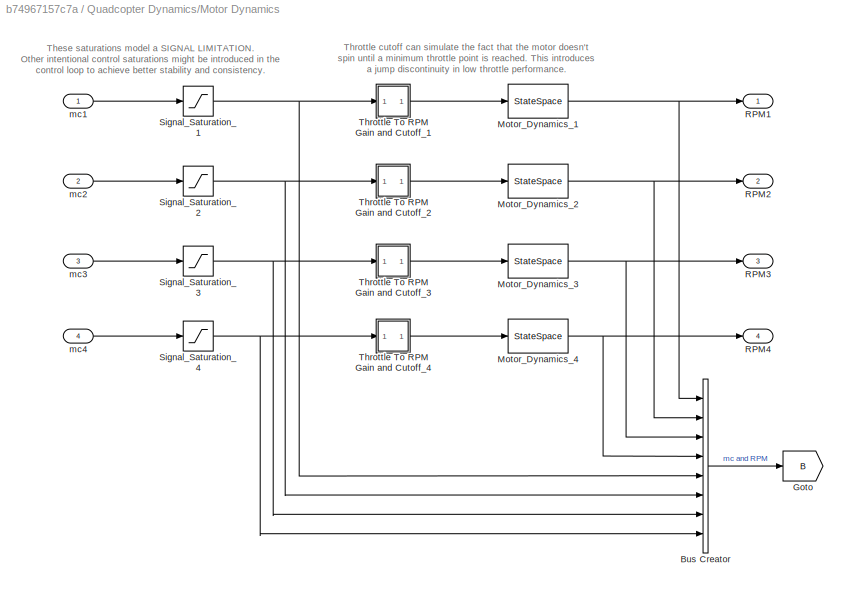
BLOCK [SubSystem] Quadcopter Dynamics/Motor Dynamics
  FunctionWithSeparateData = off
  MaskHideContents = off
  MinAlgLoopOccurrences = off
  Opaque = off
  Ports = [4, 4]
  PropExecContextOutsideSubsystem = off
  RTWSystemCode = Auto
  RequestExecContextInheritance = off
BLOCK [BusCreator] Quadcopter Dynamics/Motor Dynamics/Bus Creator
  DisplayOption = bar
  Inputs = 8
  Ports = [8, 1]
BLOCK [Goto] Quadcopter Dynamics/Motor Dynamics/Goto
  GotoTag = B
  TagVisibility = global
BLOCK [StateSpace] Quadcopter Dynamics/Motor Dynamics/Motor_Dynamics_1
  A = -1/quadModel.T
  C = 1/quadModel.T
  D = 0
  X0 = IC.w1*quadModel.T
BLOCK [StateSpace] Quadcopter Dynamics/Motor Dynamics/Motor_Dynamics_2
  A = -1/quadModel.T
  C = 1/quadModel.T
  D = 0
  X0 = IC.w2*quadModel.T
BLOCK [StateSpace] Quadcopter Dynamics/Motor Dynamics/Motor_Dynamics_3
  A = -1/quadModel.T
  C = 1/quadModel.T
  D = 0
  X0 = IC.w3*quadModel.T
BLOCK [StateSpace] Quadcopter Dynamics/Motor Dynamics/Motor_Dynamics_4
  A = -1/quadModel.T
  C = 1/quadModel.T
  D = 0
  X0 = IC.w4*quadModel.T
BLOCK [Outport] Quadcopter Dynamics/Motor Dynamics/RPM1
  IconDisplay = Port number
BLOCK [Outport] Quadcopter Dynamics/Motor Dynamics/RPM2
  IconDisplay = Port number
  Port = 2
BLOCK [Outport] Quadcopter Dynamics/Motor Dynamics/RPM3
  IconDisplay = Port number
  Port = 3
BLOCK [Outport] Quadcopter Dynamics/Motor Dynamics/RPM4
  IconDisplay = Port number
  Port = 4
BLOCK [Saturate] Quadcopter Dynamics/Motor Dynamics/Signal_Saturation_1
  InputPortMap = u0
  LowerLimit = 0
  Ports = [1, 1]
  UpperLimit = 100
BLOCK [Saturate] Quadcopter Dynamics/Motor Dynamics/Signal_Saturation_2
  InputPortMap = u0
  LowerLimit = 0
  Ports = [1, 1]
  UpperLimit = 100
BLOCK [Saturate] Quadcopter Dynamics/Motor Dynamics/Signal_Saturation_3
  InputPortMap = u0
  LowerLimit = 0
  Ports = [1, 1]
  UpperLimit = 100
BLOCK [Saturate] Quadcopter Dynamics/Motor Dynamics/Signal_Saturation_4
  InputPortMap = u0
  LowerLimit = 0
  Ports = [1, 1]
  UpperLimit = 100
BLOCK [SubSystem] Quadcopter Dynamics/Motor Dynamics/Throttle To RPM Gain and Cutoff_1
  FunctionWithSeparateData = off
  MaskHideContents = off
  MinAlgLoopOccurrences = off
  Opaque = off
  Ports = [1, 1]
  PropExecContextOutsideSubsystem = off
  RTWSystemCode = Auto
  RequestExecContextInheritance = off
  ShowPortLabels = none
BLOCK [Constant] Quadcopter Dynamics/Motor Dynamics/Throttle To RPM Gain and Cutoff_1/Constant
  Value = quadModel.b
BLOCK [Gain] Quadcopter Dynamics/Motor Dynamics/Throttle To RPM Gain and Cutoff_1/Gain
  Gain = quadModel.cr
  OutDataTypeStr = Inherit: Inherit via internal rule
  ParamDataTypeStr = Inherit: Inherit via internal rule
  SaturateOnIntegerOverflow = off
BLOCK [Inport] Quadcopter Dynamics/Motor Dynamics/Throttle To RPM Gain and Cutoff_1/In5
  IconDisplay = Port number
BLOCK [Reference] Quadcopter Dynamics/Motor Dynamics/Throttle To RPM Gain and Cutoff_1/Minimum Throttle Cutoff  REF=simulink/Logic and Bit
Operations/Compare
To Constant
  OutDataTypeStr = uint8
  Ports = [1, 1]
  SourceBlock = simulink/Logic and Bit\nOperations/Compare\nTo Constant
  SourceType = Compare To Constant
  ZeroCross = on
  const = quadModel.minThr
  relop = >=
BLOCK [Outport] Quadcopter Dynamics/Motor Dynamics/Throttle To RPM Gain and Cutoff_1/Out5
  IconDisplay = Port number
BLOCK [Product] Quadcopter Dynamics/Motor Dynamics/Throttle To RPM Gain and Cutoff_1/Product
  InputSameDT = off
  OutDataTypeStr = Inherit: Inherit via internal rule
  Ports = [2, 1]
  RndMeth = Floor
  SaturateOnIntegerOverflow = off
BLOCK [Sum] Quadcopter Dynamics/Motor Dynamics/Throttle To RPM Gain and Cutoff_1/Sum1
  IconShape = round
  InputSameDT = off
  Inputs = ++|
  OutDataTypeStr = Inherit: Inherit via internal rule
  Ports = [2, 1]
  SaturateOnIntegerOverflow = off
BLOCK [SubSystem] Quadcopter Dynamics/Motor Dynamics/Throttle To RPM Gain and Cutoff_2
  FunctionWithSeparateData = off
  MaskHideContents = off
  MinAlgLoopOccurrences = off
  Opaque = off
  Ports = [1, 1]
  PropExecContextOutsideSubsystem = off
  RTWSystemCode = Auto
  RequestExecContextInheritance = off
  ShowPortLabels = none
BLOCK [Constant] Quadcopter Dynamics/Motor Dynamics/Throttle To RPM Gain and Cutoff_2/Constant
  Value = quadModel.b
BLOCK [Gain] Quadcopter Dynamics/Motor Dynamics/Throttle To RPM Gain and Cutoff_2/Gain
  Gain = quadModel.cr
  OutDataTypeStr = Inherit: Inherit via internal rule
  ParamDataTypeStr = Inherit: Inherit via internal rule
  SaturateOnIntegerOverflow = off
BLOCK [Inport] Quadcopter Dynamics/Motor Dynamics/Throttle To RPM Gain and Cutoff_2/In5
  IconDisplay = Port number
BLOCK [Reference] Quadcopter Dynamics/Motor Dynamics/Throttle To RPM Gain and Cutoff_2/Minimum Throttle Cutoff  REF=simulink/Logic and Bit
Operations/Compare
To Constant
  OutDataTypeStr = uint8
  Ports = [1, 1]
  SourceBlock = simulink/Logic and Bit\nOperations/Compare\nTo Constant
  SourceType = Compare To Constant
  ZeroCross = on
  const = quadModel.minThr
  relop = >=
BLOCK [Outport] Quadcopter Dynamics/Motor Dynamics/Throttle To RPM Gain and Cutoff_2/Out5
  IconDisplay = Port number
BLOCK [Product] Quadcopter Dynamics/Motor Dynamics/Throttle To RPM Gain and Cutoff_2/Product
  InputSameDT = off
  OutDataTypeStr = Inherit: Inherit via internal rule
  Ports = [2, 1]
  RndMeth = Floor
  SaturateOnIntegerOverflow = off
BLOCK [Sum] Quadcopter Dynamics/Motor Dynamics/Throttle To RPM Gain and Cutoff_2/Sum1
  IconShape = round
  InputSameDT = off
  Inputs = ++|
  OutDataTypeStr = Inherit: Inherit via internal rule
  Ports = [2, 1]
  SaturateOnIntegerOverflow = off
BLOCK [SubSystem] Quadcopter Dynamics/Motor Dynamics/Throttle To RPM Gain and Cutoff_3
  FunctionWithSeparateData = off
  MaskHideContents = off
  MinAlgLoopOccurrences = off
  Opaque = off
  Ports = [1, 1]
  PropExecContextOutsideSubsystem = off
  RTWSystemCode = Auto
  RequestExecContextInheritance = off
  ShowPortLabels = none
BLOCK [Constant] Quadcopter Dynamics/Motor Dynamics/Throttle To RPM Gain and Cutoff_3/Constant
  Value = quadModel.b
BLOCK [Gain] Quadcopter Dynamics/Motor Dynamics/Throttle To RPM Gain and Cutoff_3/Gain
  Gain = quadModel.cr
  OutDataTypeStr = Inherit: Inherit via internal rule
  ParamDataTypeStr = Inherit: Inherit via internal rule
  SaturateOnIntegerOverflow = off
BLOCK [Inport] Quadcopter Dynamics/Motor Dynamics/Throttle To RPM Gain and Cutoff_3/In5
  IconDisplay = Port number
BLOCK [Reference] Quadcopter Dynamics/Motor Dynamics/Throttle To RPM Gain and Cutoff_3/Minimum Throttle Cutoff  REF=simulink/Logic and Bit
Operations/Compare
To Constant
  OutDataTypeStr = uint8
  Ports = [1, 1]
  SourceBlock = simulink/Logic and Bit\nOperations/Compare\nTo Constant
  SourceType = Compare To Constant
  ZeroCross = on
  const = quadModel.minThr
  relop = >=
BLOCK [Outport] Quadcopter Dynamics/Motor Dynamics/Throttle To RPM Gain and Cutoff_3/Out5
  IconDisplay = Port number
BLOCK [Product] Quadcopter Dynamics/Motor Dynamics/Throttle To RPM Gain and Cutoff_3/Product
  InputSameDT = off
  OutDataTypeStr = Inherit: Inherit via internal rule
  Ports = [2, 1]
  RndMeth = Floor
  SaturateOnIntegerOverflow = off
BLOCK [Sum] Quadcopter Dynamics/Motor Dynamics/Throttle To RPM Gain and Cutoff_3/Sum1
  IconShape = round
  InputSameDT = off
  Inputs = ++|
  OutDataTypeStr = Inherit: Inherit via internal rule
  Ports = [2, 1]
  SaturateOnIntegerOverflow = off
BLOCK [SubSystem] Quadcopter Dynamics/Motor Dynamics/Throttle To RPM Gain and Cutoff_4
  FunctionWithSeparateData = off
  MaskHideContents = off
  MinAlgLoopOccurrences = off
  Opaque = off
  Ports = [1, 1]
  PropExecContextOutsideSubsystem = off
  RTWSystemCode = Auto
  RequestExecContextInheritance = off
  ShowPortLabels = none
BLOCK [Constant] Quadcopter Dynamics/Motor Dynamics/Throttle To RPM Gain and Cutoff_4/Constant
  Value = quadModel.b
BLOCK [Gain] Quadcopter Dynamics/Motor Dynamics/Throttle To RPM Gain and Cutoff_4/Gain
  Gain = quadModel.cr
  OutDataTypeStr = Inherit: Inherit via internal rule
  ParamDataTypeStr = Inherit: Inherit via internal rule
  SaturateOnIntegerOverflow = off
BLOCK [Inport] Quadcopter Dynamics/Motor Dynamics/Throttle To RPM Gain and Cutoff_4/In5
  IconDisplay = Port number
BLOCK [Reference] Quadcopter Dynamics/Motor Dynamics/Throttle To RPM Gain and Cutoff_4/Minimum Throttle Cutoff  REF=simulink/Logic and Bit
Operations/Compare
To Constant
  OutDataTypeStr = uint8
  Ports = [1, 1]
  SourceBlock = simulink/Logic and Bit\nOperations/Compare\nTo Constant
  SourceType = Compare To Constant
  ZeroCross = on
  const = quadModel.minThr
  relop = >=
BLOCK [Outport] Quadcopter Dynamics/Motor Dynamics/Throttle To RPM Gain and Cutoff_4/Out5
  IconDisplay = Port number
BLOCK [Product] Quadcopter Dynamics/Motor Dynamics/Throttle To RPM Gain and Cutoff_4/Product
  InputSameDT = off
  OutDataTypeStr = Inherit: Inherit via internal rule
  Ports = [2, 1]
  RndMeth = Floor
  SaturateOnIntegerOverflow = off
BLOCK [Sum] Quadcopter Dynamics/Motor Dynamics/Throttle To RPM Gain and Cutoff_4/Sum1
  IconShape = round
  InputSameDT = off
  Inputs = ++|
  OutDataTypeStr = Inherit: Inherit via internal rule
  Ports = [2, 1]
  SaturateOnIntegerOverflow = off
BLOCK [Inport] Quadcopter Dynamics/Motor Dynamics/mc1
  IconDisplay = Port number
BLOCK [Inport] Quadcopter Dynamics/Motor Dynamics/mc2
  IconDisplay = Port number
  Port = 2
BLOCK [Inport] Quadcopter Dynamics/Motor Dynamics/mc3
  IconDisplay = Port number
  Port = 3
BLOCK [Inport] Quadcopter Dynamics/Motor Dynamics/mc4
  IconDisplay = Port number
  Port = 4
BLOCK [M-S-Function] Quadcopter Dynamics/State Equations
  FunctionName = quadcopterDynamicsSFunction
  MaskDisplay = port_label('input', 1, 'RPM1')\nport_label('input', 2, 'RPM2')\nport_label('input', 3, 'RPM3')\nport_label('input', 4, 'RPM4')\nport_label('input', 5, 'Disturbances')\nport_label('output', 1, 'P')\nport_label('output', 2, 'Q')\nport_label('output', 3, 'R')\nport_label('output', 4, 'Phi')\nport_label('output', 5, 'The')\nport_label('output', 6, 'Psi')\nport_label('output', 7, 'U')\nport_label('output', 8, 'V')...<+119ch>
  MaskIconFrame = on
  MaskIconOpaque = on
  MaskIconRotate = none
  MaskIconUnits = autoscale
  MaskPortRotate = default
  Parameters = quadModel, IC
  Ports = [5, 12]
BLOCK [Outport] Quadcopter Dynamics/States and Output
  IconDisplay = Port number
BLOCK [Inport] Quadcopter Dynamics/mc1
  IconDisplay = Port number
BLOCK [Inport] Quadcopter Dynamics/mc2
  IconDisplay = Port number
  Port = 2
BLOCK [Inport] Quadcopter Dynamics/mc3
  IconDisplay = Port number
  Port = 3
BLOCK [Inport] Quadcopter Dynamics/mc4
  IconDisplay = Port number
  Port = 4
BLOCK [Outport] yout
  IconDisplay = Port number
ANNOTATION Attitude Controller/Altitude (Z) Control: Improve to use rotation matrix and euler angles... maybe with saturation?
ANNOTATION Attitude Controller/Altitude (Z) Control: ez
ANNOTATION Position Controller: Inertial-frame velocity is used as the state to be controlled, (as this is what is controlled by attitude) thus we find position error in the body frame and map this to a body frame desired velocity. This desired velocity is then mapped to a desired attitude.
ANNOTATION Position Controller/Phi Command Control: -1 Gain is required because a "negative" angle of Phi induces a positive velocity in the body frame y direction!
ANNOTATION Quadcopter Control Mixing/+ Config Control Mixing: + (plus) Quad Configuration Control Mixing
ANNOTATION Quadcopter Control Mixing/+ Config Control Mixing: mc1 = Alt_cor -Psi_cor - The_cor
ANNOTATION Quadcopter Control Mixing/+ Config Control Mixing: mc2 = Alt_cor + Psi_cor + Phi_cor
ANNOTATION Quadcopter Control Mixing/+ Config Control Mixing: mc3 = Alt_cor - Psi_cor + The_cor
ANNOTATION Quadcopter Control Mixing/+ Config Control Mixing: mc4 = Alt_cor + Psi_cor - Phi_cor
ANNOTATION Quadcopter Control Mixing/X Config Control Mixing: X - Configuration Quad Control Mixing
ANNOTATION Quadcopter Control Mixing/X Config Control Mixing: mc1 = Alt_cor - The_cor - Phi_cor - Psi_cor
ANNOTATION Quadcopter Control Mixing/X Config Control Mixing: mc2 = Alt_cor - The_cor + Phi_cor + Psi_cor
ANNOTATION Quadcopter Control Mixing/X Config Control Mixing: mc3 = Alt_cor + The_cor + Phi_cor - Psi_cor
ANNOTATION Quadcopter Control Mixing/X Config Control Mixing: mc4 = Alt_cor + The_cor - Phi_cor + Psi_cor
ANNOTATION Quadcopter Dynamics: Motor Commands (Percent Thottle)
ANNOTATION Quadcopter Dynamics: RPM
ANNOTATION Quadcopter Dynamics/External Disturbances: Note: Torques are in units of N*m, Forces in N Torques are applied to the BODY coordinate system. Forces are applied from the WORLD coordinate system! This can be changed by adjusting the equations within the S-function.
ANNOTATION Quadcopter Dynamics/Motor Dynamics: These saturations model a SIGNAL LIMITATION. Other intentional control saturations might be introduced in the control loop to achieve better stability and consistency.
ANNOTATION Quadcopter Dynamics/Motor Dynamics: Throttle cutoff can simulate the fact that the motor doesn't spin until a minimum throttle point is reached. This introduces a jump discontinuity in low throttle performance.
ANNOTATION Quadcopter Dynamics/Motor Dynamics/Throttle To RPM Gain and Cutoff_1: Output equals linearly scaled RPM for given throttle input if throttle input >=Throttle Cuttoff (minThr) else output is zero.
ANNOTATION Quadcopter Dynamics/Motor Dynamics/Throttle To RPM Gain and Cutoff_1: This constant should be a quad.mat value
ANNOTATION Quadcopter Dynamics/Motor Dynamics/Throttle To RPM Gain and Cutoff_1: This gain should be a quad.mat value
ANNOTATION Quadcopter Dynamics/Motor Dynamics/Throttle To RPM Gain and Cutoff_1: minThr should be a quad.mat value
ANNOTATION Quadcopter Dynamics/Motor Dynamics/Throttle To RPM Gain and Cutoff_2: Output equals linearly scaled RPM for given throttle input if throttle input >=Throttle Cuttoff (minThr) else output is zero.
ANNOTATION Quadcopter Dynamics/Motor Dynamics/Throttle To RPM Gain and Cutoff_2: This constant should be a quad.mat value
ANNOTATION Quadcopter Dynamics/Motor Dynamics/Throttle To RPM Gain and Cutoff_2: This gain should be a quad.mat value
ANNOTATION Quadcopter Dynamics/Motor Dynamics/Throttle To RPM Gain and Cutoff_2: minThr should be a quad.mat value
ANNOTATION Quadcopter Dynamics/Motor Dynamics/Throttle To RPM Gain and Cutoff_3: Output equals linearly scaled RPM for given throttle input if throttle input >=Throttle Cuttoff (minThr) else output is zero.
ANNOTATION Quadcopter Dynamics/Motor Dynamics/Throttle To RPM Gain and Cutoff_3: This constant should be a quad.mat value
ANNOTATION Quadcopter Dynamics/Motor Dynamics/Throttle To RPM Gain and Cutoff_3: This gain should be a quad.mat value
ANNOTATION Quadcopter Dynamics/Motor Dynamics/Throttle To RPM Gain and Cutoff_3: minThr should be a quad.mat value
ANNOTATION Quadcopter Dynamics/Motor Dynamics/Throttle To RPM Gain and Cutoff_4: Output equals linearly scaled RPM for given throttle input if throttle input >=Throttle Cuttoff (minThr) else output is zero.
ANNOTATION Quadcopter Dynamics/Motor Dynamics/Throttle To RPM Gain and Cutoff_4: This constant should be a quad.mat value
ANNOTATION Quadcopter Dynamics/Motor Dynamics/Throttle To RPM Gain and Cutoff_4: This gain should be a quad.mat value
ANNOTATION Quadcopter Dynamics/Motor Dynamics/Throttle To RPM Gain and Cutoff_4: minThr should be a quad.mat value
LINE Attitude Controller/Altitude (Z) Control/Bus Selector:1 -> Attitude Controller/Altitude (Z) Control/Sum:1
LINE Attitude Controller/Altitude (Z) Control/Derivative:1 -> Attitude Controller/Altitude (Z) Control/Kdz:1
LINE Attitude Controller/Altitude (Z) Control/Desired Z:1 -> Attitude Controller/Altitude (Z) Control/Bus Selector:1
LINE Attitude Controller/Altitude (Z) Control/Gravity Offset (Level Flight):1 -> Attitude Controller/Altitude (Z) Control/Sum2:1
LINE Attitude Controller/Altitude (Z) Control/Integrator Limited:1 -> Attitude Controller/Altitude (Z) Control/Kiz:1
LINE Attitude Controller/Altitude (Z) Control/Kdz:1 -> Attitude Controller/Altitude (Z) Control/Sum2:4
LINE Attitude Controller/Altitude (Z) Control/Kiz:1 -> Attitude Controller/Altitude (Z) Control/Sum2:3
LINE Attitude Controller/Altitude (Z) Control/Kpz:1 -> Attitude Controller/Altitude (Z) Control/Sum2:2
LINE Attitude Controller/Altitude (Z) Control/Sum2:1 -> Attitude Controller/Altitude (Z) Control/Alt. (Z) Correction:1
NET Attitude Controller/Altitude (Z) Control/Sum:1 -> Attitude Controller/Altitude (Z) Control/Integrator Limited:1, Attitude Controller/Altitude (Z) Control/Kpz:1
NET Attitude Controller/Altitude (Z) Control/Z State:1 -> Attitude Controller/Altitude (Z) Control/Derivative:1, Attitude Controller/Altitude (Z) Control/Sum:2
LINE Attitude Controller/Altitude (Z) Control:1 -> Attitude Controller/Alt. (Z) Correction:1
NET Attitude Controller/Attitude Cmd:1 -> Attitude Controller/Altitude (Z) Control:1, Attitude Controller/Pitch (Theta) Control:1, Attitude Controller/Roll (Phi) Control :1, Attitude Controller/Yaw (Psi) Control:1
LINE Attitude Controller/Bus Selector:1 -> Attitude Controller/Roll (Phi) Control :2
LINE Attitude Controller/Bus Selector:2 -> Attitude Controller/Roll (Phi) Control :3
LINE Attitude Controller/Bus Selector:3 -> Attitude Controller/Pitch (Theta) Control:2
LINE Attitude Controller/Bus Selector:4 -> Attitude Controller/Pitch (Theta) Control:3
LINE Attitude Controller/Bus Selector:5 -> Attitude Controller/Yaw (Psi) Control:2
LINE Attitude Controller/Bus Selector:6 -> Attitude Controller/Yaw (Psi) Control:3
LINE Attitude Controller/Bus Selector:7 -> Attitude Controller/Altitude (Z) Control:2
LINE Attitude Controller/Pitch (Theta) Control/Attitude Command:1 -> Attitude Controller/Pitch (Theta) Control/Bus Selector:1
LINE Attitude Controller/Pitch (Theta) Control/Bus Selector:1 -> Attitude Controller/Pitch (Theta) Control/Sum:1
LINE Attitude Controller/Pitch (Theta) Control/Integrator Limited:1 -> Attitude Controller/Pitch (Theta) Control/Kit:1
LINE Attitude Controller/Pitch (Theta) Control/Kdt:1 -> Attitude Controller/Pitch (Theta) Control/Sum1:3
LINE Attitude Controller/Pitch (Theta) Control/Kit:1 -> Attitude Controller/Pitch (Theta) Control/Sum1:2
LINE Attitude Controller/Pitch (Theta) Control/Kpt:1 -> Attitude Controller/Pitch (Theta) Control/Sum1:1
LINE Attitude Controller/Pitch (Theta) Control/P State:1 -> Attitude Controller/Pitch (Theta) Control/Kdt:1
LINE Attitude Controller/Pitch (Theta) Control/Sum1:1 -> Attitude Controller/Pitch (Theta) Control/Theta Correction:1
NET Attitude Controller/Pitch (Theta) Control/Sum:1 -> Attitude Controller/Pitch (Theta) Control/Integrator Limited:1, Attitude Controller/Pitch (Theta) Control/Kpt:1
LINE Attitude Controller/Pitch (Theta) Control/Theta State:1 -> Attitude Controller/Pitch (Theta) Control/Sum:2
LINE Attitude Controller/Pitch (Theta) Control:1 -> Attitude Controller/Pitch (Theta) Correction:1
LINE Attitude Controller/Roll (Phi) Control /Attitude Command :1 -> Attitude Controller/Roll (Phi) Control /Bus Selector:1
LINE Attitude Controller/Roll (Phi) Control /Bus Selector:1 -> Attitude Controller/Roll (Phi) Control /Sum:1
LINE Attitude Controller/Roll (Phi) Control /Integrator Limited:1 -> Attitude Controller/Roll (Phi) Control /Kip:1
LINE Attitude Controller/Roll (Phi) Control /Kdp:1 -> Attitude Controller/Roll (Phi) Control /Sum1:3
LINE Attitude Controller/Roll (Phi) Control /Kip:1 -> Attitude Controller/Roll (Phi) Control /Sum1:2
LINE Attitude Controller/Roll (Phi) Control /Kpp:1 -> Attitude Controller/Roll (Phi) Control /Sum1:1
LINE Attitude Controller/Roll (Phi) Control /P:1 -> Attitude Controller/Roll (Phi) Control /Kdp:1
LINE Attitude Controller/Roll (Phi) Control /Phi State:1 -> Attitude Controller/Roll (Phi) Control /Sum:2
LINE Attitude Controller/Roll (Phi) Control /Sum1:1 -> Attitude Controller/Roll (Phi) Control /Phi Correction:1
NET Attitude Controller/Roll (Phi) Control /Sum:1 -> Attitude Controller/Roll (Phi) Control /Integrator Limited:1, Attitude Controller/Roll (Phi) Control /Kpp:1
LINE Attitude Controller/Roll (Phi) Control :1 -> Attitude Controller/Roll (Phi) Correction:1
LINE Attitude Controller/State Input:1 -> Attitude Controller/Bus Selector:1
LINE Attitude Controller/Yaw (Psi) Control/Attitude Command:1 -> Attitude Controller/Yaw (Psi) Control/Bus Selector:1
LINE Attitude Controller/Yaw (Psi) Control/Bus Selector:1 -> Attitude Controller/Yaw (Psi) Control/Sum:1
LINE Attitude Controller/Yaw (Psi) Control/Integrator Limited:1 -> Attitude Controller/Yaw (Psi) Control/Kit:1
LINE Attitude Controller/Yaw (Psi) Control/Kds:1 -> Attitude Controller/Yaw (Psi) Control/Sum1:3
LINE Attitude Controller/Yaw (Psi) Control/Kit:1 -> Attitude Controller/Yaw (Psi) Control/Sum1:2
LINE Attitude Controller/Yaw (Psi) Control/Kps:1 -> Attitude Controller/Yaw (Psi) Control/Sum1:1
LINE Attitude Controller/Yaw (Psi) Control/Psi State:1 -> Attitude Controller/Yaw (Psi) Control/Sum:2
LINE Attitude Controller/Yaw (Psi) Control/R State:1 -> Attitude Controller/Yaw (Psi) Control/Kds:1
LINE Attitude Controller/Yaw (Psi) Control/Sum1:1 -> Attitude Controller/Yaw (Psi) Control/Psi Correction:1
NET Attitude Controller/Yaw (Psi) Control/Sum:1 -> Attitude Controller/Yaw (Psi) Control/Integrator Limited:1, Attitude Controller/Yaw (Psi) Control/Kps:1
LINE Attitude Controller/Yaw (Psi) Control:1 -> Attitude Controller/Yaw (Psi) Correction:1
LINE Attitude Controller:1 -> Quadcopter Control Mixing:1
LINE Attitude Controller:2 -> Quadcopter Control Mixing:2
LINE Attitude Controller:3 -> Quadcopter Control Mixing:3
LINE Attitude Controller:4 -> Quadcopter Control Mixing:4
NET Path Command/Bus Creator:1 -> Path Command/Bus Selector:1, Path Command/Path Command :1
LINE Path Command/Bus Selector:1 -> Path Command/Go to Quadcopter Dynamics Block1:1
LINE Path Command/Psi Timeseries From Wkspace:1 -> Path Command/Bus Creator:4
LINE Path Command/X Timeseries From Wkspace:1 -> Path Command/Bus Creator:1
LINE Path Command/Y Timeseries From Wkspace:1 -> Path Command/Bus Creator:2
LINE Path Command/Z Timeseries From Wkspace:1 -> Path Command/Bus Creator:3
LINE Path Command:1 -> Position Controller:1
NET Position Controller/Bus Creator:1 -> Position Controller/Attitude Cmd:1, Position Controller/Goto Quadcopter Dynamics Block:1
LINE Position Controller/Bus Selector1:1 -> Position Controller/Error Rotations:3
LINE Position Controller/Bus Selector1:2 -> Position Controller/Error Rotations:4
LINE Position Controller/Bus Selector1:3 -> Position Controller/Error Rotations:5
LINE Position Controller/Bus Selector1:4 -> Position Controller/Theta Command Control:2
LINE Position Controller/Bus Selector1:5 -> Position Controller/Phi Command Control:2
LINE Position Controller/Bus Selector:1 -> Position Controller/Error Rotations:1
LINE Position Controller/Bus Selector:2 -> Position Controller/Error Rotations:2
LINE Position Controller/Bus Selector:3 -> Position Controller/Bus Creator:4
LINE Position Controller/Bus Selector:4 -> Position Controller/Bus Creator:3
LINE Position Controller/Error Rotations/Product1:1 -> Position Controller/Error Rotations/Sum4:1
LINE Position Controller/Error Rotations/Product2:1 -> Position Controller/Error Rotations/Sum2:2
LINE Position Controller/Error Rotations/Product3:1 -> Position Controller/Error Rotations/Sum4:2
LINE Position Controller/Error Rotations/Product:1 -> Position Controller/Error Rotations/Sum2:1
LINE Position Controller/Error Rotations/Psi:1 -> Position Controller/Error Rotations/Trigonometric Functions:1
NET Position Controller/Error Rotations/Sum1:1 -> Position Controller/Error Rotations/Product1:1, Position Controller/Error Rotations/Product2:1
LINE Position Controller/Error Rotations/Sum2:1 -> Position Controller/Error Rotations/X Error in body Frame:1
LINE Position Controller/Error Rotations/Sum4:1 -> Position Controller/Error Rotations/Y Error in Body Frame:1
NET Position Controller/Error Rotations/Sum:1 -> Position Controller/Error Rotations/Product3:1, Position Controller/Error Rotations/Product:1
NET Position Controller/Error Rotations/Trigonometric Functions:1 -> Position Controller/Error Rotations/Product2:2, Position Controller/Error Rotations/Product3:2
NET Position Controller/Error Rotations/Trigonometric Functions:2 -> Position Controller/Error Rotations/Product1:2, Position Controller/Error Rotations/Product:2
LINE Position Controller/Error Rotations/X:1 -> Position Controller/Error Rotations/Sum:2
LINE Position Controller/Error Rotations/X_cmd:1 -> Position Controller/Error Rotations/Sum:1
LINE Position Controller/Error Rotations/Y:1 -> Position Controller/Error Rotations/Sum1:2
LINE Position Controller/Error Rotations/Y_cmd:1 -> Position Controller/Error Rotations/Sum1:1
LINE Position Controller/Error Rotations:1 -> Position Controller/Theta Command Control:1
LINE Position Controller/Error Rotations:2 -> Position Controller/Phi Command Control:1
LINE Position Controller/Path Cmd:1 -> Position Controller/Bus Selector:1
LINE Position Controller/Phi Command Control/Attitude Limits_Phi:1 -> Position Controller/Phi Command Control/Phi_cmd:1
LINE Position Controller/Phi Command Control/Desired Yb Velocity:1 -> Position Controller/Phi Command Control/Sum3:1
LINE Position Controller/Phi Command Control/Gain:1 -> Position Controller/Phi Command Control/Attitude Limits_Phi:1
LINE Position Controller/Phi Command Control/Kdp:1 -> Position Controller/Phi Command Control/Sum6:2
LINE Position Controller/Phi Command Control/Kpp:1 -> Position Controller/Phi Command Control/Sum6:1
LINE Position Controller/Phi Command Control/Sum3:1 -> Position Controller/Phi Command Control/Kpp:1
LINE Position Controller/Phi Command Control/Sum6:1 -> Position Controller/Phi Command Control/Gain:1
LINE Position Controller/Phi Command Control/V Derivative:1 -> Position Controller/Phi Command Control/Kdp:1
NET Position Controller/Phi Command Control/Yb Velocity:1 -> Position Controller/Phi Command Control/Sum3:2, Position Controller/Phi Command Control/V Derivative:1
LINE Position Controller/Phi Command Control:1 -> Position Controller/Bus Creator:1
LINE Position Controller/State Input:1 -> Position Controller/Bus Selector1:1
LINE Position Controller/Theta Command Control/Attitude Limits_Theta:1 -> Position Controller/Theta Command Control/The_cmd:1
LINE Position Controller/Theta Command Control/Desired Xb Velocity:1 -> Position Controller/Theta Command Control/Sum3:1
LINE Position Controller/Theta Command Control/Kdt:1 -> Position Controller/Theta Command Control/Sum6:2
LINE Position Controller/Theta Command Control/Kpt:1 -> Position Controller/Theta Command Control/Sum6:1
LINE Position Controller/Theta Command Control/Sum3:1 -> Position Controller/Theta Command Control/Kpt:1
LINE Position Controller/Theta Command Control/Sum6:1 -> Position Controller/Theta Command Control/Attitude Limits_Theta:1
LINE Position Controller/Theta Command Control/U Derivative:1 -> Position Controller/Theta Command Control/Kdt:1
NET Position Controller/Theta Command Control/Xb Velocity:1 -> Position Controller/Theta Command Control/Sum3:2, Position Controller/Theta Command Control/U Derivative:1
LINE Position Controller/Theta Command Control:1 -> Position Controller/Bus Creator:2
LINE Position Controller:1 -> Attitude Controller:1
NET Quadcopter Control Mixing/+ Config Control Mixing/Altitude Correction:1 -> Quadcopter Control Mixing/+ Config Control Mixing/Sum2:1, Quadcopter Control Mixing/+ Config Control Mixing/Sum4:2
NET Quadcopter Control Mixing/+ Config Control Mixing/Phi Correction:1 -> Quadcopter Control Mixing/+ Config Control Mixing/Sum11:1, Quadcopter Control Mixing/+ Config Control Mixing/Sum8:2
NET Quadcopter Control Mixing/+ Config Control Mixing/Psi Correction:1 -> Quadcopter Control Mixing/+ Config Control Mixing/Sum2:2, Quadcopter Control Mixing/+ Config Control Mixing/Sum4:1
LINE Quadcopter Control Mixing/+ Config Control Mixing/Sum11:1 -> Quadcopter Control Mixing/+ Config Control Mixing/mc4:1
LINE Quadcopter Control Mixing/+ Config Control Mixing/Sum1:1 -> Quadcopter Control Mixing/+ Config Control Mixing/mc1:1
NET Quadcopter Control Mixing/+ Config Control Mixing/Sum2:1 -> Quadcopter Control Mixing/+ Config Control Mixing/Sum1:1, Quadcopter Control Mixing/+ Config Control Mixing/Sum3:2
LINE Quadcopter Control Mixing/+ Config Control Mixing/Sum3:1 -> Quadcopter Control Mixing/+ Config Control Mixing/mc3:1
NET Quadcopter Control Mixing/+ Config Control Mixing/Sum4:1 -> Quadcopter Control Mixing/+ Config Control Mixing/Sum11:2, Quadcopter Control Mixing/+ Config Control Mixing/Sum8:1
LINE Quadcopter Control Mixing/+ Config Control Mixing/Sum8:1 -> Quadcopter Control Mixing/+ Config Control Mixing/mc2:1
NET Quadcopter Control Mixing/+ Config Control Mixing/Theta Correction:1 -> Quadcopter Control Mixing/+ Config Control Mixing/Sum1:2, Quadcopter Control Mixing/+ Config Control Mixing/Sum3:1
LINE Quadcopter Control Mixing/+ Config Control Mixing:1 -> Quadcopter Control Mixing/Bus Creator:1
LINE Quadcopter Control Mixing/+ Config Control Mixing:2 -> Quadcopter Control Mixing/Bus Creator:2
LINE Quadcopter Control Mixing/+ Config Control Mixing:3 -> Quadcopter Control Mixing/Bus Creator:3
LINE Quadcopter Control Mixing/+ Config Control Mixing:4 -> Quadcopter Control Mixing/Bus Creator:4
NET Quadcopter Control Mixing/Altitude Correction:1 -> Quadcopter Control Mixing/+ Config Control Mixing:4, Quadcopter Control Mixing/X Config Control Mixing:4
LINE Quadcopter Control Mixing/Bus Creator1:1 -> Quadcopter Control Mixing/Switch:3
LINE Quadcopter Control Mixing/Bus Creator:1 -> Quadcopter Control Mixing/Switch:1
LINE Quadcopter Control Mixing/Bus Selector:1 -> Quadcopter Control Mixing/mc1:1
LINE Quadcopter Control Mixing/Bus Selector:2 -> Quadcopter Control Mixing/mc2:1
LINE Quadcopter Control Mixing/Bus Selector:3 -> Quadcopter Control Mixing/mc3:1
LINE Quadcopter Control Mixing/Bus Selector:4 -> Quadcopter Control Mixing/mc4:1
NET Quadcopter Control Mixing/Phi Correction:1 -> Quadcopter Control Mixing/+ Config Control Mixing:1, Quadcopter Control Mixing/X Config Control Mixing:1
NET Quadcopter Control Mixing/Psi Correction:1 -> Quadcopter Control Mixing/+ Config Control Mixing:3, Quadcopter Control Mixing/X Config Control Mixing:3
LINE Quadcopter Control Mixing/Quad Model Type Logical:1 -> Quadcopter Control Mixing/Switch:2
LINE Quadcopter Control Mixing/Switch:1 -> Quadcopter Control Mixing/Bus Selector:1
NET Quadcopter Control Mixing/Theta Correction:1 -> Quadcopter Control Mixing/+ Config Control Mixing:2, Quadcopter Control Mixing/X Config Control Mixing:2
NET Quadcopter Control Mixing/X Config Control Mixing/Altitude (z) Correction:1 -> Quadcopter Control Mixing/X Config Control Mixing/Sum2:1, Quadcopter Control Mixing/X Config Control Mixing/Sum4:2
NET Quadcopter Control Mixing/X Config Control Mixing/Phi Correction:1 -> Quadcopter Control Mixing/X Config Control Mixing/Sum11:1, Quadcopter Control Mixing/X Config Control Mixing/Sum1:2, Quadcopter Control Mixing/X Config Control Mixing/Sum3:1, Quadcopter Control Mixing/X Config Control Mixing/Sum8:2
NET Quadcopter Control Mixing/X Config Control Mixing/Psi Correction:1 -> Quadcopter Control Mixing/X Config Control Mixing/Sum2:2, Quadcopter Control Mixing/X Config Control Mixing/Sum4:1
LINE Quadcopter Control Mixing/X Config Control Mixing/Sum11:1 -> Quadcopter Control Mixing/X Config Control Mixing/Sum7:2
LINE Quadcopter Control Mixing/X Config Control Mixing/Sum1:1 -> Quadcopter Control Mixing/X Config Control Mixing/Sum5:1
NET Quadcopter Control Mixing/X Config Control Mixing/Sum2:1 -> Quadcopter Control Mixing/X Config Control Mixing/Sum1:1, Quadcopter Control Mixing/X Config Control Mixing/Sum8:1
LINE Quadcopter Control Mixing/X Config Control Mixing/Sum3:1 -> Quadcopter Control Mixing/X Config Control Mixing/Sum:2
NET Quadcopter Control Mixing/X Config Control Mixing/Sum4:1 -> Quadcopter Control Mixing/X Config Control Mixing/Sum11:2, Quadcopter Control Mixing/X Config Control Mixing/Sum3:2
LINE Quadcopter Control Mixing/X Config Control Mixing/Sum5:1 -> Quadcopter Control Mixing/X Config Control Mixing/mc1:1
LINE Quadcopter Control Mixing/X Config Control Mixing/Sum6:1 -> Quadcopter Control Mixing/X Config Control Mixing/mc3:1
LINE Quadcopter Control Mixing/X Config Control Mixing/Sum7:1 -> Quadcopter Control Mixing/X Config Control Mixing/mc4:1
LINE Quadcopter Control Mixing/X Config Control Mixing/Sum8:1 -> Quadcopter Control Mixing/X Config Control Mixing/Sum6:1
LINE Quadcopter Control Mixing/X Config Control Mixing/Sum:1 -> Quadcopter Control Mixing/X Config Control Mixing/mc2:1
NET Quadcopter Control Mixing/X Config Control Mixing/Theta Correction:1 -> Quadcopter Control Mixing/X Config Control Mixing/Sum5:2, Quadcopter Control Mixing/X Config Control Mixing/Sum6:2, Quadcopter Control Mixing/X Config Control Mixing/Sum7:1, Quadcopter Control Mixing/X Config Control Mixing/Sum:1
LINE Quadcopter Control Mixing/X Config Control Mixing:1 -> Quadcopter Control Mixing/Bus Creator1:1
LINE Quadcopter Control Mixing/X Config Control Mixing:2 -> Quadcopter Control Mixing/Bus Creator1:2
LINE Quadcopter Control Mixing/X Config Control Mixing:3 -> Quadcopter Control Mixing/Bus Creator1:3
LINE Quadcopter Control Mixing/X Config Control Mixing:4 -> Quadcopter Control Mixing/Bus Creator1:4
LINE Quadcopter Control Mixing:1 -> Quadcopter Dynamics:1
LINE Quadcopter Control Mixing:2 -> Quadcopter Dynamics:2
LINE Quadcopter Control Mixing:3 -> Quadcopter Dynamics:3
LINE Quadcopter Control Mixing:4 -> Quadcopter Dynamics:4
LINE Quadcopter Dynamics/Bus Creator:1 -> Quadcopter Dynamics/States and Output:1
LINE Quadcopter Dynamics/External Disturbances/Bus Creator:1 -> Quadcopter Dynamics/External Disturbances/Bus to Vector:1
LINE Quadcopter Dynamics/External Disturbances/Bus to Vector:1 -> Quadcopter Dynamics/External Disturbances/Disturbances :1
LINE Quadcopter Dynamics/External Disturbances/Constant2:1 -> Quadcopter Dynamics/External Disturbances/Bus Creator:3
LINE Quadcopter Dynamics/External Disturbances/Constant3:1 -> Quadcopter Dynamics/External Disturbances/Bus Creator:4
LINE Quadcopter Dynamics/External Disturbances/Constant4:1 -> Quadcopter Dynamics/External Disturbances/Bus Creator:5
LINE Quadcopter Dynamics/External Disturbances/Constant5:1 -> Quadcopter Dynamics/External Disturbances/Bus Creator:6
LINE Quadcopter Dynamics/External Disturbances/Constant6:1 -> Quadcopter Dynamics/External Disturbances/Bus Creator:1
LINE Quadcopter Dynamics/External Disturbances/Step:1 -> Quadcopter Dynamics/External Disturbances/Bus Creator:2
LINE Quadcopter Dynamics/External Disturbances:1 -> Quadcopter Dynamics/State Equations:5
LINE Quadcopter Dynamics/From Attitude Command Block:1 -> Quadcopter Dynamics/Bus Creator:14
LINE Quadcopter Dynamics/From Motor Dynamics:1 -> Quadcopter Dynamics/Bus Creator:13
LINE Quadcopter Dynamics/From Path Command Block:1 -> Quadcopter Dynamics/Bus Creator:15
LINE Quadcopter Dynamics/Motor Dynamics/Bus Creator:1 -> Quadcopter Dynamics/Motor Dynamics/Goto:1
NET Quadcopter Dynamics/Motor Dynamics/Motor_Dynamics_1:1 -> Quadcopter Dynamics/Motor Dynamics/Bus Creator:1, Quadcopter Dynamics/Motor Dynamics/RPM1:1
NET Quadcopter Dynamics/Motor Dynamics/Motor_Dynamics_2:1 -> Quadcopter Dynamics/Motor Dynamics/Bus Creator:2, Quadcopter Dynamics/Motor Dynamics/RPM2:1
NET Quadcopter Dynamics/Motor Dynamics/Motor_Dynamics_3:1 -> Quadcopter Dynamics/Motor Dynamics/Bus Creator:3, Quadcopter Dynamics/Motor Dynamics/RPM3:1
NET Quadcopter Dynamics/Motor Dynamics/Motor_Dynamics_4:1 -> Quadcopter Dynamics/Motor Dynamics/Bus Creator:4, Quadcopter Dynamics/Motor Dynamics/RPM4:1
NET Quadcopter Dynamics/Motor Dynamics/Signal_Saturation_1:1 -> Quadcopter Dynamics/Motor Dynamics/Bus Creator:5, Quadcopter Dynamics/Motor Dynamics/Throttle To RPM Gain and Cutoff_1:1
NET Quadcopter Dynamics/Motor Dynamics/Signal_Saturation_2:1 -> Quadcopter Dynamics/Motor Dynamics/Bus Creator:6, Quadcopter Dynamics/Motor Dynamics/Throttle To RPM Gain and Cutoff_2:1
NET Quadcopter Dynamics/Motor Dynamics/Signal_Saturation_3:1 -> Quadcopter Dynamics/Motor Dynamics/Bus Creator:7, Quadcopter Dynamics/Motor Dynamics/Throttle To RPM Gain and Cutoff_3:1
NET Quadcopter Dynamics/Motor Dynamics/Signal_Saturation_4:1 -> Quadcopter Dynamics/Motor Dynamics/Bus Creator:8, Quadcopter Dynamics/Motor Dynamics/Throttle To RPM Gain and Cutoff_4:1
LINE Quadcopter Dynamics/Motor Dynamics/Throttle To RPM Gain and Cutoff_1/Constant:1 -> Quadcopter Dynamics/Motor Dynamics/Throttle To RPM Gain and Cutoff_1/Sum1:1
LINE Quadcopter Dynamics/Motor Dynamics/Throttle To RPM Gain and Cutoff_1/Gain:1 -> Quadcopter Dynamics/Motor Dynamics/Throttle To RPM Gain and Cutoff_1/Sum1:2
NET Quadcopter Dynamics/Motor Dynamics/Throttle To RPM Gain and Cutoff_1/In5:1 -> Quadcopter Dynamics/Motor Dynamics/Throttle To RPM Gain and Cutoff_1/Gain:1, Quadcopter Dynamics/Motor Dynamics/Throttle To RPM Gain and Cutoff_1/Minimum Throttle Cutoff:1
LINE Quadcopter Dynamics/Motor Dynamics/Throttle To RPM Gain and Cutoff_1/Minimum Throttle Cutoff:1 -> Quadcopter Dynamics/Motor Dynamics/Throttle To RPM Gain and Cutoff_1/Product:2
LINE Quadcopter Dynamics/Motor Dynamics/Throttle To RPM Gain and Cutoff_1/Product:1 -> Quadcopter Dynamics/Motor Dynamics/Throttle To RPM Gain and Cutoff_1/Out5:1
LINE Quadcopter Dynamics/Motor Dynamics/Throttle To RPM Gain and Cutoff_1/Sum1:1 -> Quadcopter Dynamics/Motor Dynamics/Throttle To RPM Gain and Cutoff_1/Product:1
LINE Quadcopter Dynamics/Motor Dynamics/Throttle To RPM Gain and Cutoff_1:1 -> Quadcopter Dynamics/Motor Dynamics/Motor_Dynamics_1:1
LINE Quadcopter Dynamics/Motor Dynamics/Throttle To RPM Gain and Cutoff_2/Constant:1 -> Quadcopter Dynamics/Motor Dynamics/Throttle To RPM Gain and Cutoff_2/Sum1:1
LINE Quadcopter Dynamics/Motor Dynamics/Throttle To RPM Gain and Cutoff_2/Gain:1 -> Quadcopter Dynamics/Motor Dynamics/Throttle To RPM Gain and Cutoff_2/Sum1:2
NET Quadcopter Dynamics/Motor Dynamics/Throttle To RPM Gain and Cutoff_2/In5:1 -> Quadcopter Dynamics/Motor Dynamics/Throttle To RPM Gain and Cutoff_2/Gain:1, Quadcopter Dynamics/Motor Dynamics/Throttle To RPM Gain and Cutoff_2/Minimum Throttle Cutoff:1
LINE Quadcopter Dynamics/Motor Dynamics/Throttle To RPM Gain and Cutoff_2/Minimum Throttle Cutoff:1 -> Quadcopter Dynamics/Motor Dynamics/Throttle To RPM Gain and Cutoff_2/Product:2
LINE Quadcopter Dynamics/Motor Dynamics/Throttle To RPM Gain and Cutoff_2/Product:1 -> Quadcopter Dynamics/Motor Dynamics/Throttle To RPM Gain and Cutoff_2/Out5:1
LINE Quadcopter Dynamics/Motor Dynamics/Throttle To RPM Gain and Cutoff_2/Sum1:1 -> Quadcopter Dynamics/Motor Dynamics/Throttle To RPM Gain and Cutoff_2/Product:1
LINE Quadcopter Dynamics/Motor Dynamics/Throttle To RPM Gain and Cutoff_2:1 -> Quadcopter Dynamics/Motor Dynamics/Motor_Dynamics_2:1
LINE Quadcopter Dynamics/Motor Dynamics/Throttle To RPM Gain and Cutoff_3/Constant:1 -> Quadcopter Dynamics/Motor Dynamics/Throttle To RPM Gain and Cutoff_3/Sum1:1
LINE Quadcopter Dynamics/Motor Dynamics/Throttle To RPM Gain and Cutoff_3/Gain:1 -> Quadcopter Dynamics/Motor Dynamics/Throttle To RPM Gain and Cutoff_3/Sum1:2
NET Quadcopter Dynamics/Motor Dynamics/Throttle To RPM Gain and Cutoff_3/In5:1 -> Quadcopter Dynamics/Motor Dynamics/Throttle To RPM Gain and Cutoff_3/Gain:1, Quadcopter Dynamics/Motor Dynamics/Throttle To RPM Gain and Cutoff_3/Minimum Throttle Cutoff:1
LINE Quadcopter Dynamics/Motor Dynamics/Throttle To RPM Gain and Cutoff_3/Minimum Throttle Cutoff:1 -> Quadcopter Dynamics/Motor Dynamics/Throttle To RPM Gain and Cutoff_3/Product:2
LINE Quadcopter Dynamics/Motor Dynamics/Throttle To RPM Gain and Cutoff_3/Product:1 -> Quadcopter Dynamics/Motor Dynamics/Throttle To RPM Gain and Cutoff_3/Out5:1
LINE Quadcopter Dynamics/Motor Dynamics/Throttle To RPM Gain and Cutoff_3/Sum1:1 -> Quadcopter Dynamics/Motor Dynamics/Throttle To RPM Gain and Cutoff_3/Product:1
LINE Quadcopter Dynamics/Motor Dynamics/Throttle To RPM Gain and Cutoff_3:1 -> Quadcopter Dynamics/Motor Dynamics/Motor_Dynamics_3:1
LINE Quadcopter Dynamics/Motor Dynamics/Throttle To RPM Gain and Cutoff_4/Constant:1 -> Quadcopter Dynamics/Motor Dynamics/Throttle To RPM Gain and Cutoff_4/Sum1:1
LINE Quadcopter Dynamics/Motor Dynamics/Throttle To RPM Gain and Cutoff_4/Gain:1 -> Quadcopter Dynamics/Motor Dynamics/Throttle To RPM Gain and Cutoff_4/Sum1:2
NET Quadcopter Dynamics/Motor Dynamics/Throttle To RPM Gain and Cutoff_4/In5:1 -> Quadcopter Dynamics/Motor Dynamics/Throttle To RPM Gain and Cutoff_4/Gain:1, Quadcopter Dynamics/Motor Dynamics/Throttle To RPM Gain and Cutoff_4/Minimum Throttle Cutoff:1
LINE Quadcopter Dynamics/Motor Dynamics/Throttle To RPM Gain and Cutoff_4/Minimum Throttle Cutoff:1 -> Quadcopter Dynamics/Motor Dynamics/Throttle To RPM Gain and Cutoff_4/Product:2
LINE Quadcopter Dynamics/Motor Dynamics/Throttle To RPM Gain and Cutoff_4/Product:1 -> Quadcopter Dynamics/Motor Dynamics/Throttle To RPM Gain and Cutoff_4/Out5:1
LINE Quadcopter Dynamics/Motor Dynamics/Throttle To RPM Gain and Cutoff_4/Sum1:1 -> Quadcopter Dynamics/Motor Dynamics/Throttle To RPM Gain and Cutoff_4/Product:1
LINE Quadcopter Dynamics/Motor Dynamics/Throttle To RPM Gain and Cutoff_4:1 -> Quadcopter Dynamics/Motor Dynamics/Motor_Dynamics_4:1
LINE Quadcopter Dynamics/Motor Dynamics/mc1:1 -> Quadcopter Dynamics/Motor Dynamics/Signal_Saturation_1:1
LINE Quadcopter Dynamics/Motor Dynamics/mc2:1 -> Quadcopter Dynamics/Motor Dynamics/Signal_Saturation_2:1
LINE Quadcopter Dynamics/Motor Dynamics/mc3:1 -> Quadcopter Dynamics/Motor Dynamics/Signal_Saturation_3:1
LINE Quadcopter Dynamics/Motor Dynamics/mc4:1 -> Quadcopter Dynamics/Motor Dynamics/Signal_Saturation_4:1
LINE Quadcopter Dynamics/Motor Dynamics:1 -> Quadcopter Dynamics/State Equations:1
LINE Quadcopter Dynamics/Motor Dynamics:2 -> Quadcopter Dynamics/State Equations:2
LINE Quadcopter Dynamics/Motor Dynamics:3 -> Quadcopter Dynamics/State Equations:3
LINE Quadcopter Dynamics/Motor Dynamics:4 -> Quadcopter Dynamics/State Equations:4
LINE Quadcopter Dynamics/State Equations:1 -> Quadcopter Dynamics/Bus Creator:1
LINE Quadcopter Dynamics/State Equations:10 -> Quadcopter Dynamics/Bus Creator:10
LINE Quadcopter Dynamics/State Equations:11 -> Quadcopter Dynamics/Bus Creator:11
LINE Quadcopter Dynamics/State Equations:12 -> Quadcopter Dynamics/Bus Creator:12
LINE Quadcopter Dynamics/State Equations:2 -> Quadcopter Dynamics/Bus Creator:2
LINE Quadcopter Dynamics/State Equations:3 -> Quadcopter Dynamics/Bus Creator:3
LINE Quadcopter Dynamics/State Equations:4 -> Quadcopter Dynamics/Bus Creator:4
LINE Quadcopter Dynamics/State Equations:5 -> Quadcopter Dynamics/Bus Creator:5
LINE Quadcopter Dynamics/State Equations:6 -> Quadcopter Dynamics/Bus Creator:6
LINE Quadcopter Dynamics/State Equations:7 -> Quadcopter Dynamics/Bus Creator:7
LINE Quadcopter Dynamics/State Equations:8 -> Quadcopter Dynamics/Bus Creator:8
LINE Quadcopter Dynamics/State Equations:9 -> Quadcopter Dynamics/Bus Creator:9
LINE Quadcopter Dynamics/mc1:1 -> Quadcopter Dynamics/Motor Dynamics:1
LINE Quadcopter Dynamics/mc2:1 -> Quadcopter Dynamics/Motor Dynamics:2
LINE Quadcopter Dynamics/mc3:1 -> Quadcopter Dynamics/Motor Dynamics:3
LINE Quadcopter Dynamics/mc4:1 -> Quadcopter Dynamics/Motor Dynamics:4
NET Quadcopter Dynamics:1 -> Attitude Controller:2, Position Controller:2, yout:1
note: NET lines group one-source signal fan-out (src -> all destinations, sorted); 1:1 wires keep LINE
